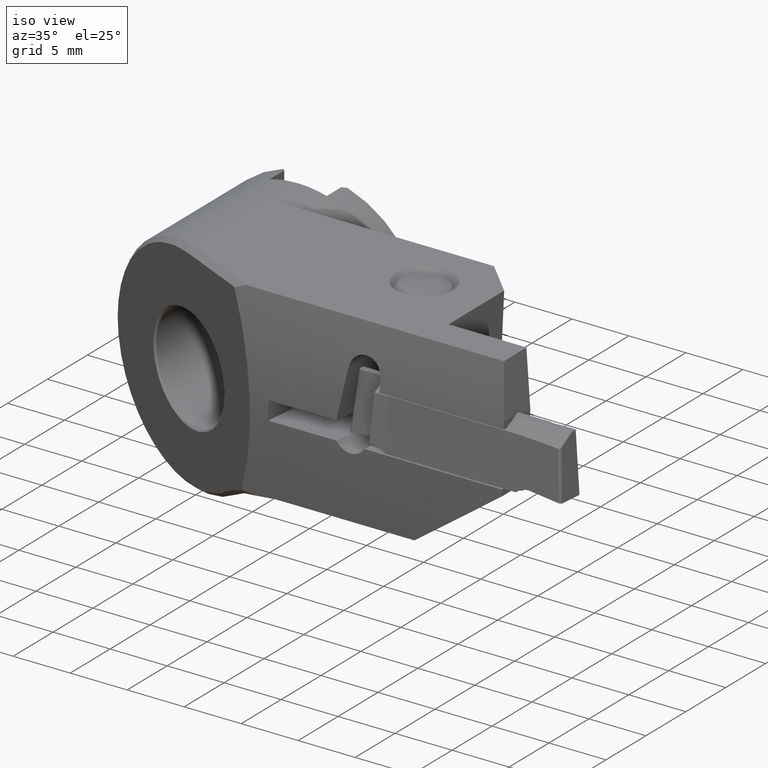
[diagram: clean part render]
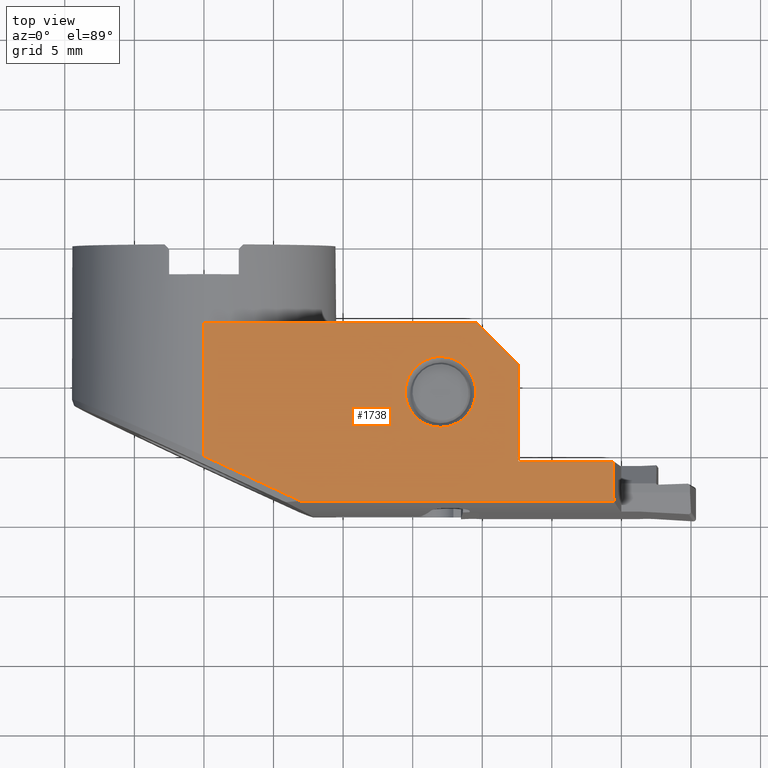
[diagram: tour spotlight — one face highlighted and labeled with its STEP entity id]
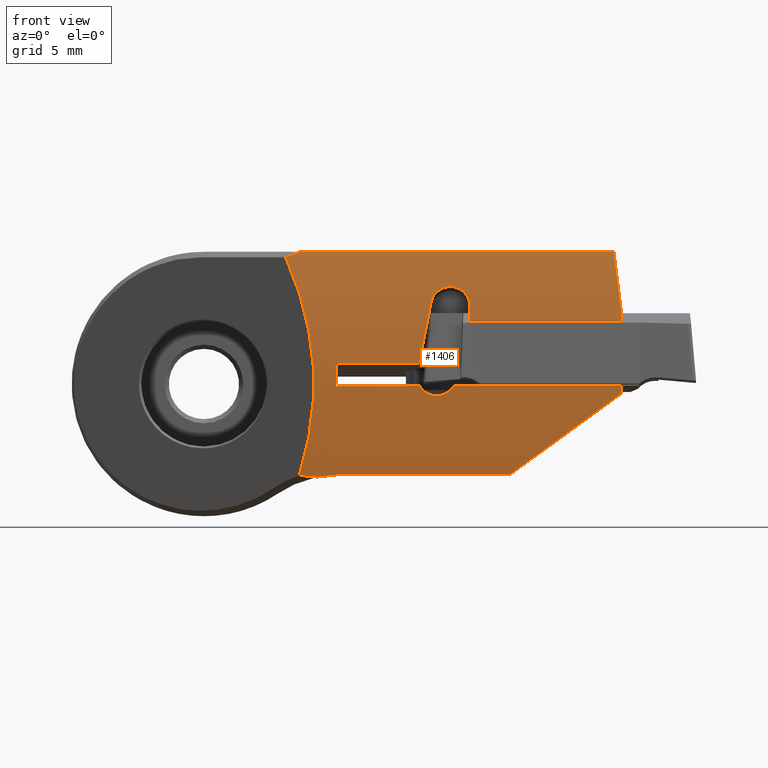
[diagram: tour spotlight — one face highlighted and labeled with its STEP entity id]
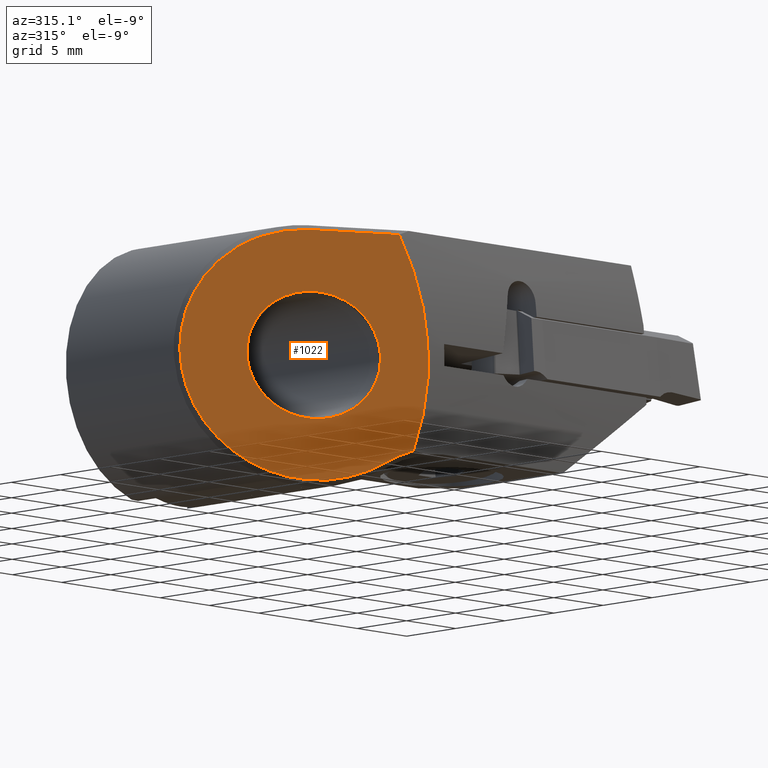
[diagram: tour spotlight — one face highlighted and labeled with its STEP entity id]
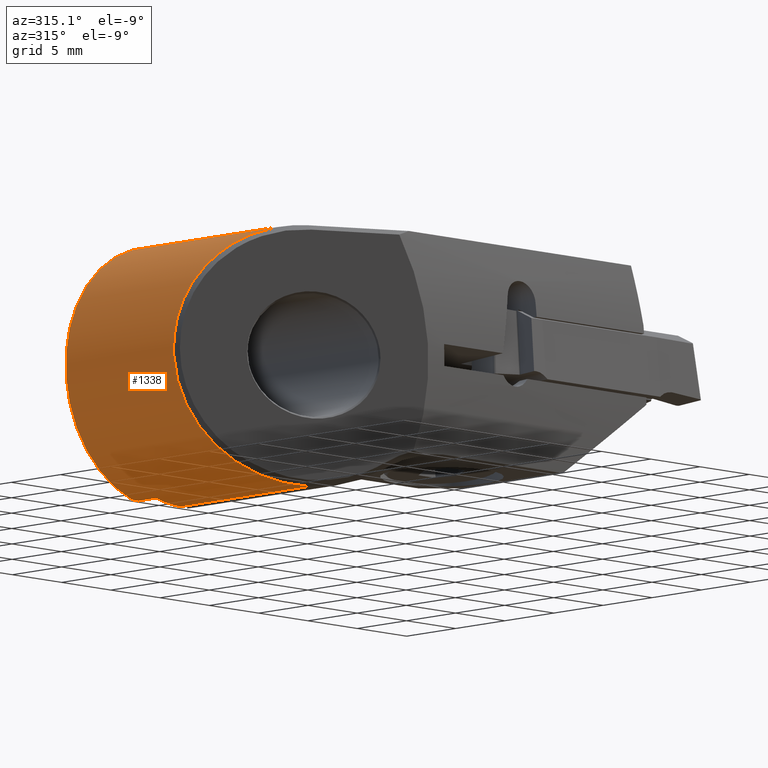
[diagram: tour spotlight — one face highlighted and labeled with its STEP entity id]
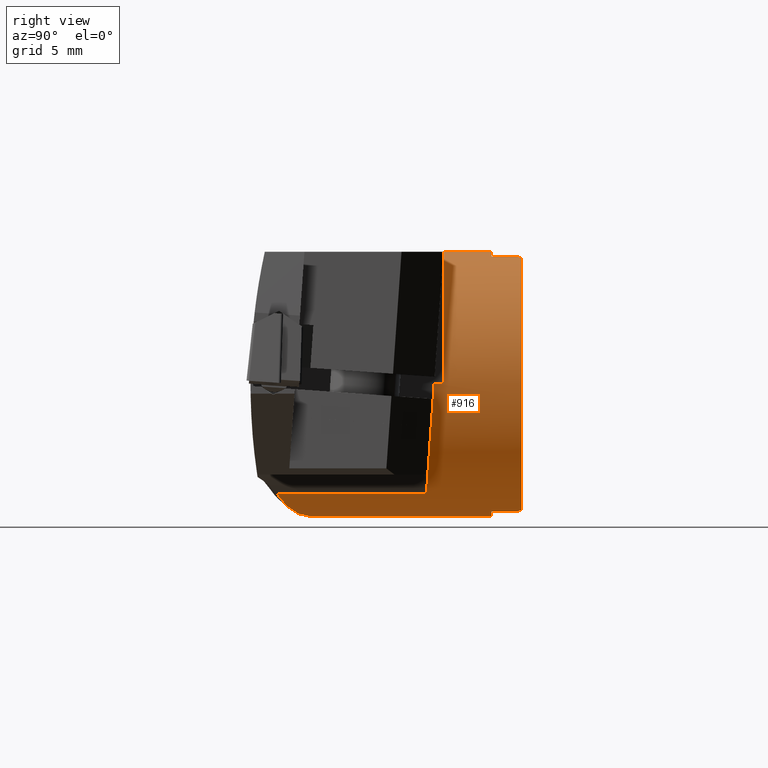
[diagram: tour spotlight — one face highlighted and labeled with its STEP entity id]
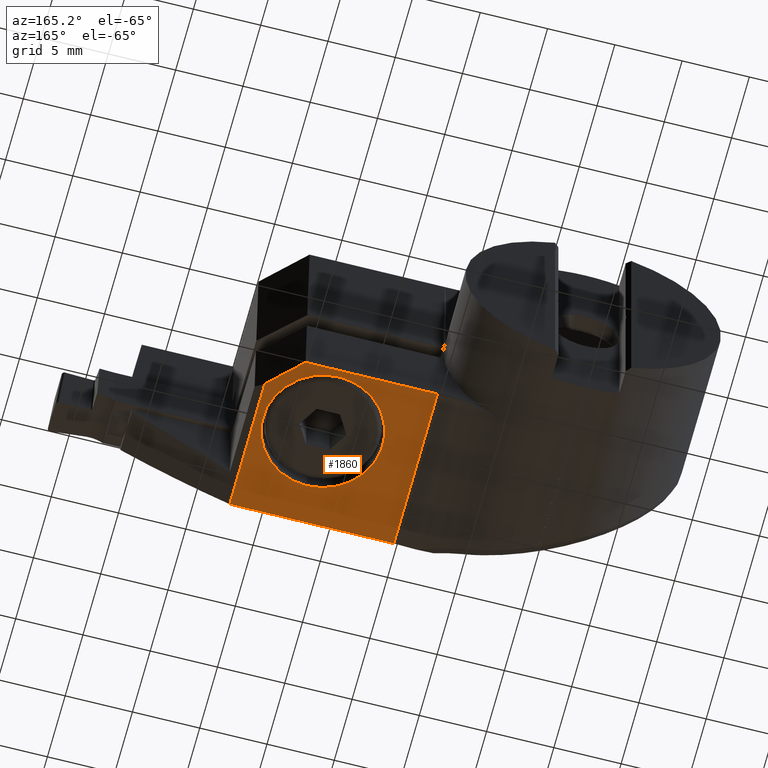
[diagram: tour spotlight — one face highlighted and labeled with its STEP entity id]
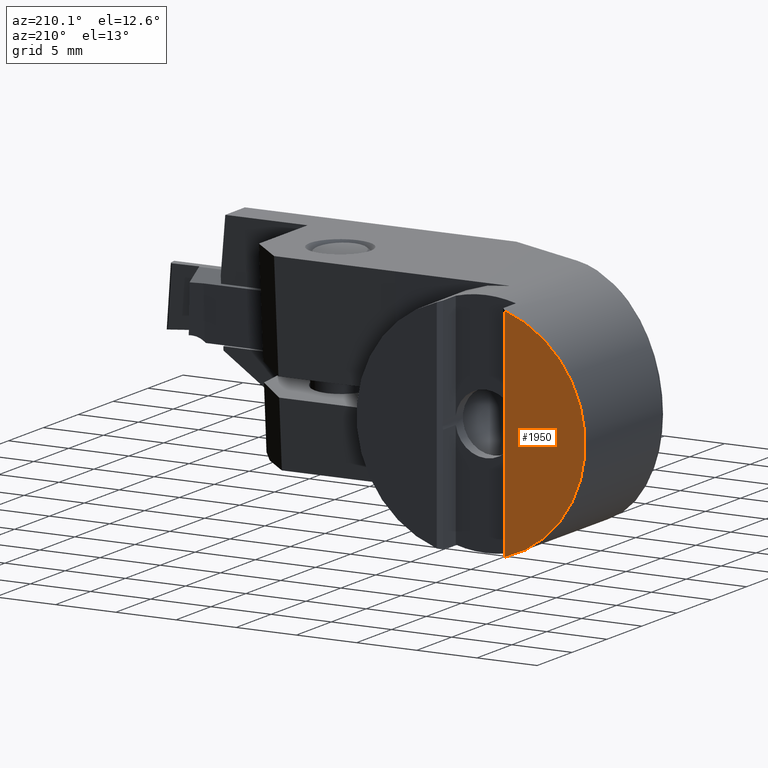
[diagram: tour spotlight — one face highlighted and labeled with its STEP entity id]
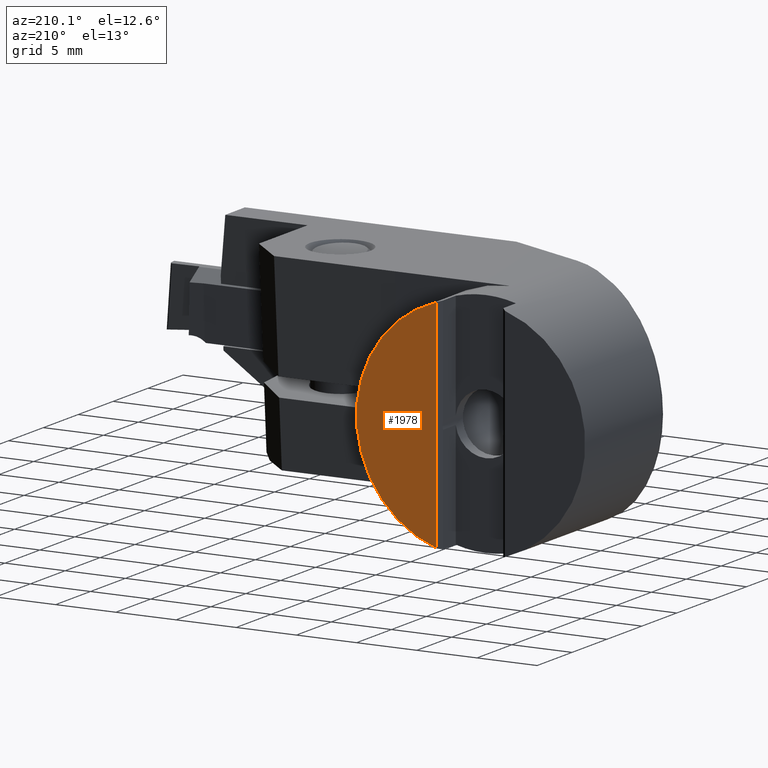
[diagram: tour spotlight — one face highlighted and labeled with its STEP entity id]
A machine part: a face-by-face anatomy tour. The part has 133 B-rep faces; the first image is the clean iso view, then the 8 largest visible faces are spotlighted one at a time (largest first), each with its STEP entity span.

Face 1 — top view, entity #1738. In plain terms, the highlighted planar face has unit normal (0, 0, -1).
Definition (entity closure, byte-faithful):
#770=EDGE_CURVE('Kante8',#1376,#1020,#2240,.F.);
#796=VERTEX_POINT('NONE',#2270);
#902=VERTEX_POINT('NONE',#2385);
#1020=VERTEX_POINT('NONE',#2517);
#1108=VERTEX_POINT('NONE',#2616);
#1124=EDGE_CURVE('NONE',#1340,#1570,#2632,.T.);
#1134=EDGE_CURVE('NONE',#2136,#2030,#2644,.T.);
#1154=EDGE_CURVE('Kante14',#2030,#1020,#2666,.T.);
#1340=VERTEX_POINT('NONE',#2870);
#1376=VERTEX_POINT('NONE',#2908);
#1570=VERTEX_POINT('NONE',#3121);
#1600=EDGE_CURVE('NONE',#1340,#902,#3152,.F.);
#1664=VERTEX_POINT('NONE',#3220);
#1738=ADVANCED_FACE('Fl�che4',(#3300,#3301),#3302,.F.);
#1822=EDGE_CURVE('Kante13',#1664,#796,#3390,.T.);
#1910=EDGE_CURVE('NONE',#1938,#1570,#3492,.T.);
#1924=EDGE_CURVE('Kante50',#1938,#1108,#3507,.T.);
#1938=VERTEX_POINT('NONE',#3521);
#2030=VERTEX_POINT('NONE',#3622);
#2044=EDGE_CURVE('NONE',#1108,#2136,#3637,.T.);
#2102=EDGE_CURVE('Kante6',#902,#1376,#3703,.F.);
#2136=VERTEX_POINT('NONE',#3740);
#2186=EDGE_CURVE('Kante13',#796,#1664,#3797,.T.);
#2240=LINE('',#3850,#3851);
#2270=CARTESIAN_POINT('',(17.0,-8.07234027818883,9.5));
#2385=CARTESIAN_POINT('',(0.0,-5.61117100890403,9.5));
#2517=CARTESIAN_POINT('',(19.6,-5.61117100890395,9.5));
#2616=CARTESIAN_POINT('',(29.4355158916822,-15.5954923137924,9.5));
#2632=LINE('',#4540,#4541);
#2644=LINE('',#4558,#4559);
#2666=LINE('',#4588,#4589);
#2870=CARTESIAN_POINT('',(0.0,-15.2201239327675,9.5));
#2908=CARTESIAN_POINT('',(9.5,-5.61117100890395,9.5));
#3121=CARTESIAN_POINT('',(6.9139038345562,-18.4441302385683,9.5));
#3152=LINE('',#5621,#5622);
#3220=CARTESIAN_POINT('',(17.0,-13.1540056975631,9.5));
#3300=FACE_OUTER_BOUND('',#5911,.T.);
#3301=FACE_BOUND('',#5912,.T.);
#3302=PLANE('',#5913);
#3390=B_SPLINE_CURVE_WITH_KNOTS('',3,(#6113,#6114,#6115,#6116,#6117,#6118,#6119,#6120,#6121,#6122,#6123,#6124,#6125,#6126,#6127,#6128,#6129,#6130),.UNSPECIFIED.,.F.,.F.,(4,2,2,2,2,2,2,2,4),(0.0,0.0624999999999999,0.125,0.1875,0.25,0.3125,0.375,0.4375,0.5),.UNSPECIFIED.);
#3492=LINE('',#6425,#6426);
#3507=LINE('',#6445,#6446);
#3521=CARTESIAN_POINT('',(29.45991452678,-18.4441302385683,9.5));
#3622=CARTESIAN_POINT('',(22.6,-8.61849670314746,9.5));
#3637=LINE('',#6727,#6728);
#3703=LINE('',#6835,#6836);
#3740=CARTESIAN_POINT('',(22.6,-15.5954923137924,9.5));
#3797=B_SPLINE_CURVE_WITH_KNOTS('',3,(#7016,#7017,#7018,#7019,#7020,#7021,#7022,#7023,#7024,#7025,#7026,#7027,#7028,#7029,#7030,#7031,#7032,#7033),.UNSPECIFIED.,.F.,.F.,(4,2,2,2,2,2,2,2,4),(0.5,0.5625,0.625,0.6875,0.75,0.8125,0.875,0.9375,1.0),.UNSPECIFIED.);
#3850=CARTESIAN_POINT('',(3.46410161513775,-5.61117100890395,9.5));
#3851=VECTOR('',#7074,1.0);
#4540=CARTESIAN_POINT('',(1.91506363879351,-16.1131327733911,9.5));
#4541=VECTOR('',#7492,0.999999999999999);
#4558=CARTESIAN_POINT('',(22.6,-17.8166781012989,9.5));
#4559=VECTOR('',#7511,1.0);
#4588=CARTESIAN_POINT('',(19.8271006147311,-5.83882618019044,9.5));
#4589=VECTOR('',#7531,1.0);
#5621=CARTESIAN_POINT('',(0.0,-20.22,9.5));
#5622=VECTOR('',#8055,1.0);
#5911=EDGE_LOOP('',(#8189,#8190,#8191,#8192,#8193,#8194,#8195,#8196,#8197));
#5912=EDGE_LOOP('',(#8198,#8199));
#5913=AXIS2_PLACEMENT_3D('',#8200,#8201,#8202);
#6113=CARTESIAN_POINT('',(17.0,-13.1540056975631,9.5));
#6114=CARTESIAN_POINT('',(16.6674531846679,-13.1537502839888,9.5));
#6115=CARTESIAN_POINT('',(16.3441792285853,-13.0884980800889,9.5));
#6116=CARTESIAN_POINT('',(15.7175868422396,-12.8285848857271,9.5));
#6117=CARTESIAN_POINT('',(15.4423199209496,-12.6447891810534,9.5));
#6118=CARTESIAN_POINT('',(14.9731530509615,-12.1748368724592,9.5));
#6119=CARTESIAN_POINT('',(14.7902092282371,-11.8986244456558,9.5));
#6120=CARTESIAN_POINT('',(14.5304801812511,-11.2706883889742,9.5));
#6121=CARTESIAN_POINT('',(14.4654836775435,-10.9456068019501,9.5));
#6122=CARTESIAN_POINT('',(14.4652295846403,-10.2807391738018,9.5));
#6123=CARTESIAN_POINT('',(14.5307046707184,-9.95575080689296,9.5));
#6124=CARTESIAN_POINT('',(14.7899847387698,-9.32762830998083,9.50000000000001));
#6125=CARTESIAN_POINT('',(14.9733327172319,-9.05168921739731,9.5));
#6126=CARTESIAN_POINT('',(15.4421402546792,-8.58137668059389,9.5));
#6127=CARTESIAN_POINT('',(15.7176798242193,-8.39798613227057,9.5));
#6128=CARTESIAN_POINT('',(16.3440862466056,-8.13762285341733,9.5));
#6129=CARTESIAN_POINT('',(16.668375957863,-8.07246763487209,9.5));
#6130=CARTESIAN_POINT('',(17.0,-8.07234027818883,9.5));
#6425=CARTESIAN_POINT('',(-9.39759768309578,-18.4441302385683,9.5));
#6426=VECTOR('',#8370,1.0);
#6445=CARTESIAN_POINT('',(29.4737662715979,-20.0613766728235,9.5));
#6446=VECTOR('',#8383,1.0);
#6727=CARTESIAN_POINT('',(11.3,-15.5954923137924,9.5));
#6728=VECTOR('',#8508,1.0);
#6835=CARTESIAN_POINT('',(0.0,-5.61117100890403,9.5));
#6836=VECTOR('',#8600,1.0);
#7016=CARTESIAN_POINT('',(17.0,-8.07234027818883,9.5));
#7017=CARTESIAN_POINT('',(17.331624042137,-8.07221292150558,9.5));
#7018=CARTESIAN_POINT('',(17.6558207714134,-8.13784789566211,9.5));
#7019=CARTESIAN_POINT('',(18.2824131577616,-8.39776109002579,9.5));
#7020=CARTESIAN_POINT('',(18.5576800790516,-8.58155679469942,9.5));
#7021=CARTESIAN_POINT('',(19.0268469490373,-9.05150910329179,9.5));
#7022=CARTESIAN_POINT('',(19.2097907717635,-9.32772153009955,9.5));
#7023=CARTESIAN_POINT('',(19.4695198187483,-9.95565758677425,9.5));
#7024=CARTESIAN_POINT('',(19.5345163224559,-10.2807391738051,9.5));
#7025=CARTESIAN_POINT('',(19.5347704153604,-10.9456068019468,9.5));
#7026=CARTESIAN_POINT('',(19.4692953292798,-11.2705951688613,9.5));
#7027=CARTESIAN_POINT('',(19.210015261232,-11.8987176657687,9.5));
#7028=CARTESIAN_POINT('',(19.026667282767,-12.174656758355,9.5));
#7029=CARTESIAN_POINT('',(18.5578597453219,-12.6449692951576,9.5));
#7030=CARTESIAN_POINT('',(18.2832411402165,-12.8279770483636,9.5));
#7031=CARTESIAN_POINT('',(17.6549927889586,-13.0891059174523,9.5));
#7032=CARTESIAN_POINT('',(17.3319538007627,-13.1542606556707,9.5));
#7033=CARTESIAN_POINT('',(17.0,-13.1540056975631,9.5));
#7074=DIRECTION('',(-1.0,0.0,0.0));
#7492=DIRECTION('',(0.906307787036649,-0.422618261740701,0.0));
#7511=DIRECTION('',(0.0,1.0,0.0));
#7531=DIRECTION('',(-0.706243967529311,0.707968543318457,-0.0));
#8055=DIRECTION('',(0.0,-1.0,0.0));
#8189=ORIENTED_EDGE('',*,*,#1600,.F.);
#8190=ORIENTED_EDGE('',*,*,#1124,.T.);
#8191=ORIENTED_EDGE('',*,*,#1910,.F.);
#8192=ORIENTED_EDGE('',*,*,#1924,.T.);
#8193=ORIENTED_EDGE('',*,*,#2044,.T.);
#8194=ORIENTED_EDGE('',*,*,#1134,.T.);
#8195=ORIENTED_EDGE('',*,*,#1154,.T.);
#8196=ORIENTED_EDGE('',*,*,#770,.F.);
#8197=ORIENTED_EDGE('',*,*,#2102,.F.);
#8198=ORIENTED_EDGE('',*,*,#1822,.T.);
#8199=ORIENTED_EDGE('',*,*,#2186,.T.);
#8200=CARTESIAN_POINT('',(0.0,-20.22,9.5));
#8201=DIRECTION('',(0.0,0.0,-1.0));
#8202=DIRECTION('',(1.0,0.0,0.0));
#8370=DIRECTION('',(-1.0,0.0,0.0));
#8383=DIRECTION('',(-0.00856470385322847,0.999963322251325,-0.0));
#8508=DIRECTION('',(-1.0,0.0,0.0));
#8600=DIRECTION('',(-1.0,0.0,-0.0));

Face 2 — front view, entity #1406. In plain terms, the highlighted cylindrical surface (partial cylindrical patch) has radius 44.5 mm, axis along (-1, -0, -0).
Definition (entity closure, byte-faithful):
#780=VERTEX_POINT('NONE',#2251);
#794=VERTEX_POINT('NONE',#2268);
#808=EDGE_CURVE('NONE',#1986,#2098,#2282,.T.);
#812=VERTEX_POINT('NONE',#2286);
#824=VERTEX_POINT('',#2299);
#952=EDGE_CURVE('NONE',#1192,#1368,#2441,.F.);
#1000=VERTEX_POINT('NONE',#2495);
#1024=VERTEX_POINT('NONE',#2523);
#1106=EDGE_CURVE('NONE',#2098,#2122,#2614,.T.);
#1156=EDGE_CURVE('NONE',#1300,#1000,#2668,.T.);
#1164=EDGE_CURVE('Kante80',#1000,#780,#2676,.T.);
#1168=VERTEX_POINT('NONE',#2681);
#1192=VERTEX_POINT('NONE',#2710);
#1210=EDGE_CURVE('NONE',#812,#1346,#2728,.T.);
#1258=VERTEX_POINT('NONE',#2780);
#1284=EDGE_CURVE('NONE',#2154,#1454,#2807,.T.);
#1300=VERTEX_POINT('NONE',#2823);
#1346=VERTEX_POINT('NONE',#2876);
#1368=VERTEX_POINT('NONE',#2900);
#1406=ADVANCED_FACE('Fl�che8',(#2941),#2942,.T.);
#1418=EDGE_CURVE('Kante49',#824,#1986,#2955,.F.);
#1420=EDGE_CURVE('NONE',#1346,#1938,#2957,.T.);
#1454=VERTEX_POINT('NONE',#2996);
#1502=EDGE_CURVE('Kante57',#1916,#1454,#3051,.T.);
#1554=EDGE_CURVE('Kante49',#794,#824,#3104,.F.);
#1570=VERTEX_POINT('NONE',#3121);
#1616=EDGE_CURVE('NONE',#1024,#1300,#3169,.T.);
#1748=EDGE_CURVE('Kante52',#1168,#794,#3313,.T.);
#1810=EDGE_CURVE('Kante51',#1570,#1918,#3378,.F.);
#1832=EDGE_CURVE('NONE',#812,#1168,#3404,.T.);
#1872=EDGE_CURVE('NONE',#1368,#1916,#3448,.F.);
#1902=EDGE_CURVE('NONE',#1258,#1192,#3483,.T.);
#1910=EDGE_CURVE('NONE',#1938,#1570,#3492,.T.);
#1916=VERTEX_POINT('NONE',#3499);
#1918=VERTEX_POINT('NONE',#3501);
#1938=VERTEX_POINT('NONE',#3521);
#1986=VERTEX_POINT('NONE',#3573);
#2012=EDGE_CURVE('NONE',#2122,#1258,#3603,.T.);
#2026=EDGE_CURVE('Kante39',#2154,#780,#3618,.T.);
#2098=VERTEX_POINT('NONE',#3699);
#2122=VERTEX_POINT('NONE',#3725);
#2154=VERTEX_POINT('NONE',#3761);
#2200=EDGE_CURVE('NONE',#1918,#1024,#3812,.T.);
#2251=CARTESIAN_POINT('',(22.0,-18.9927214061103,-6.5));
#2268=CARTESIAN_POINT('',(19.1009,-19.1140728078476,5.61701307951539));
#2282=ELLIPSE('',#3925,45.332892925507,44.5);
#2286=CARTESIAN_POINT('',(30.0,-19.239533158625,4.52310003398128));
#2299=CARTESIAN_POINT('',(17.7009,-18.9149524660292,7.00650788613257));
#2441=B_SPLINE_CURVE_WITH_KNOTS('',3,(#4238,#4239,#4240,#4241,#4242,#4243,#4244,#4245,#4246,#4247,#4248,#4249,#4250,#4251,#4252,#4253,#4254,#4255,#4256,#4257),.UNSPECIFIED.,.F.,.F.,(4,2,2,2,2,2,2,2,2,4),(2.63919345754755,3.16787423935682,3.69526520631181,4.2226561732668,4.75004714022178,5.27743810717676,5.80611888898604,6.33479967079532,6.86273927272208,7.39067887464885),.UNSPECIFIED.);
#2495=CARTESIAN_POINT('',(9.79795897113271,-18.9927214061103,-6.5));
#2523=CARTESIAN_POINT('',(6.84717519888688,-18.9829752229444,-6.56566919852634));
#2614=LINE('',#4512,#4513);
#2668=B_SPLINE_CURVE_WITH_KNOTS('',3,(#4592,#4593,#4594,#4595,#4596,#4597,#4598,#4599),.UNSPECIFIED.,.F.,.F.,(4,2,2,4),(10.0091798743695,11.6425256412956,13.2758714082217,14.9092171751478),.UNSPECIFIED.);
#2676=LINE('',#4612,#4613);
#2681=CARTESIAN_POINT('',(19.1009,-19.239533158625,4.52310003398128));
#2710=CARTESIAN_POINT('',(15.5087850094,-19.4697396159966,-0.152230445385687));
#2728=CIRCLE('',#4694,44.5);
#2780=CARTESIAN_POINT('',(9.5,-19.4697396159966,-0.152230445385657));
#2807=CIRCLE('',#4850,44.5);
#2823=CARTESIAN_POINT('',(8.11528167965003,-18.9659251968347,-6.67896444626872));
#2876=CARTESIAN_POINT('',(30.0,-19.1719779650046,5.14151183809294));
#2900=CARTESIAN_POINT('',(16.71539183,-19.4619868238761,-0.844457496877239));
#2941=FACE_OUTER_BOUND('',#5128,.T.);
#2942=CYLINDRICAL_SURFACE('',#5129,44.5);
#2955=B_SPLINE_CURVE_WITH_KNOTS('',3,(#5147,#5148,#5149,#5150,#5151,#5152,#5153,#5154,#5155,#5156,#5157,#5158,#5159,#5160,#5161,#5162,#5163,#5164,#5165,#5166,#5167,#5168,#5169,#5170,#5171,#5172,#5173,#5174,#5175,#5176,#5177),.UNSPECIFIED.,.F.,.F.,(4,2,2,2,2,2,2,3,2,2,2,2,2,2,4),(-3.69527850511229,-3.16796067022955,-2.64003356226671,-2.11210645430386,-1.58344463983648,-1.05478282536911,-0.527391412684553,0.0,0.527391412684553,1.05478282536911,1.58344463983648,2.11210645430386,2.64003356226671,3.16796067022955,3.69527850511229),.UNSPECIFIED.);
#2957=ELLIPSE('',#5180,44.8341872329187,44.5);
#2996=CARTESIAN_POINT('',(30.0,-19.4697396159966,-0.152230445385657));
#3051=LINE('',#5308,#5309);
#3104=B_SPLINE_CURVE_WITH_KNOTS('',3,(#5499,#5500,#5501,#5502,#5503,#5504,#5505,#5506,#5507,#5508,#5509,#5510,#5511,#5512,#5513,#5514,#5515,#5516,#5517,#5518,#5519,#5520,#5521,#5522,#5523,#5524,#5525,#5526,#5527,#5528,#5529),.UNSPECIFIED.,.F.,.F.,(4,2,2,2,2,2,2,3,2,2,2,2,2,2,4),(-3.69527850511229,-3.16796067022955,-2.64003356226671,-2.11210645430386,-1.58344463983648,-1.05478282536911,-0.527391412684553,0.0,0.527391412684553,1.05478282536911,1.58344463983648,2.11210645430386,2.64003356226671,3.16796067022955,3.69527850511229),.UNSPECIFIED.);
#3121=CARTESIAN_POINT('',(6.9139038345562,-18.4441302385683,9.5));
#3169=B_SPLINE_CURVE_WITH_KNOTS('',3,(#5687,#5688,#5689,#5690,#5691,#5692),.UNSPECIFIED.,.F.,.F.,(4,2,4),(-1.28576253934172,-0.634236740640874,-0.0),.UNSPECIFIED.);
#3313=CIRCLE('',#5931,44.5);
#3378=ELLIPSE('',#6094,174.272721030182,44.5);
#3404=LINE('',#6180,#6181);
#3448=B_SPLINE_CURVE_WITH_KNOTS('',3,(#6319,#6320,#6321,#6322,#6323,#6324,#6325,#6326,#6327,#6328,#6329,#6330,#6331,#6332,#6333,#6334,#6335,#6336,#6337,#6338),.UNSPECIFIED.,.F.,.F.,(4,2,2,2,2,2,2,2,2,4),(1.05463347188474,1.58257307381151,2.11051267573827,2.63919345754755,3.16787423935682,3.69526520631181,4.2226561732668,4.75004714022178,5.27743810717676,5.80611888898604),.UNSPECIFIED.);
#3483=LINE('',#6411,#6412);
#3492=LINE('',#6425,#6426);
#3499=CARTESIAN_POINT('',(17.9219986506,-19.4697396159966,-0.152230445385683));
#3501=CARTESIAN_POINT('',(5.87121268776036,-18.527876429934,9.10831493277442));
#3521=CARTESIAN_POINT('',(29.45991452678,-18.4441302385683,9.5));
#3573=CARTESIAN_POINT('',(16.3266219431733,-19.0794956242425,5.88238011139461));
#3603=CIRCLE('',#6658,44.5);
#3618=ELLIPSE('',#6690,75.7079219433321,44.5);
#3699=CARTESIAN_POINT('',(15.4621869348671,-19.4463687502489,1.45004234141012));
#3725=CARTESIAN_POINT('',(9.5,-19.4463687502489,1.45004234141012));
#3761=CARTESIAN_POINT('',(30.0,-19.4646864696509,-0.687659775957177));
#3812=ELLIPSE('',#7054,105.295970450286,44.5);
#3925=AXIS2_PLACEMENT_3D('',#7116,#7117,#7118);
#4238=CARTESIAN_POINT('',(18.0086898399103,-19.4699944956124,0.0221334693949452));
#4239=CARTESIAN_POINT('',(17.9371722626638,-19.4700805190093,-0.150819108947051));
#4240=CARTESIAN_POINT('',(17.8293228268919,-19.469103769117,-0.308748100301531));
#4241=CARTESIAN_POINT('',(17.5806744190182,-19.4666763475275,-0.557924572910028));
#4242=CARTESIAN_POINT('',(17.4233904785588,-19.4650749188956,-0.665913659164027));
#4243=CARTESIAN_POINT('',(17.0786497008994,-19.4627000024274,-0.80918449077726));
#4244=CARTESIAN_POINT('',(16.891188818985,-19.4619868238761,-0.844457496877237));
#4245=CARTESIAN_POINT('',(16.539594841015,-19.4619868238761,-0.844457496877237));
#4246=CARTESIAN_POINT('',(16.3521339591006,-19.4627000024274,-0.809184490777259));
#4247=CARTESIAN_POINT('',(16.0073931814412,-19.4650749188956,-0.665913659164026));
#4248=CARTESIAN_POINT('',(15.8501092409818,-19.4666763475275,-0.557924572910026));
#4249=CARTESIAN_POINT('',(15.6014608331081,-19.469103769117,-0.30874810030153));
#4250=CARTESIAN_POINT('',(15.4936113973362,-19.4700805190093,-0.150819108947052));
#4251=CARTESIAN_POINT('',(15.3505762428432,-19.4699084722154,0.195086047736942));
#4252=CARTESIAN_POINT('',(15.31539183,-19.4687001931713,0.383062720915745));
#4253=CARTESIAN_POINT('',(15.31539183,-19.4642736603162,0.735241698076891));
#4254=CARTESIAN_POINT('',(15.3504880578076,-19.4607630315838,0.922943179729514));
#4255=CARTESIAN_POINT('',(15.4933750413226,-19.4522602746566,1.26820349431916));
#4256=CARTESIAN_POINT('',(15.6011691591624,-19.4473278313071,1.4257624031044));
#4257=CARTESIAN_POINT('',(15.7255856774591,-19.4429924251314,1.55014346245937));
#4512=CARTESIAN_POINT('',(-9.39759768309578,-19.4463687502489,1.45004234141012));
#4513=VECTOR('',#7482,1.0);
#4592=CARTESIAN_POINT('',(6.51036733579734,-18.8825608135066,-7.20673315726945));
#4593=CARTESIAN_POINT('',(7.03274323159025,-18.9212053933627,-6.97126129337561));
#4594=CARTESIAN_POINT('',(7.58189785257082,-18.94875752205,-6.7921344304082));
#4595=CARTESIAN_POINT('',(8.69227567750493,-18.9845070806536,-6.55647540577291));
#4596=CARTESIAN_POINT('',(9.25351038215735,-18.9927214061103,-6.5));
#4597=CARTESIAN_POINT('',(10.3424075601081,-18.9927214061103,-6.5));
#4598=CARTESIAN_POINT('',(10.9036422647605,-18.9845070806536,-6.55647540577291));
#4599=CARTESIAN_POINT('',(11.4588311772275,-18.9666323013518,-6.67430491809056));
#4612=CARTESIAN_POINT('',(-9.39759768309578,-18.9927214061103,-6.5));
#4613=VECTOR('',#7533,1.0);
#4694=AXIS2_PLACEMENT_3D('',#7596,#7597,#7598);
#4850=AXIS2_PLACEMENT_3D('',#7673,#7674,#7675);
#5128=EDGE_LOOP('',(#7835,#7836,#7837,#7838,#7839,#7840,#7841,#7842,#7843,#7844,#7845,#7846,#7847,#7848,#7849,#7850,#7851,#7852,#7853,#7854,#7855));
#5129=AXIS2_PLACEMENT_3D('',#7856,#7857,#7858);
#5147=CARTESIAN_POINT('',(17.1651997739772,-19.2587864324125,4.33051917720611));
#5148=CARTESIAN_POINT('',(16.9927578807693,-19.2518336373619,4.40162632233678));
#5149=CARTESIAN_POINT('',(16.8353604358486,-19.2411608650497,4.50885445538865));
#5150=CARTESIAN_POINT('',(16.586675731845,-19.2152644708247,4.7562653916079));
#5151=CARTESIAN_POINT('',(16.4788827461887,-19.1982989967348,4.91298132241943));
#5152=CARTESIAN_POINT('',(16.3359965366449,-19.1588389922415,5.25607516470492));
#5153=CARTESIAN_POINT('',(16.3009,-19.1362853432069,5.44244489456297));
#5154=CARTESIAN_POINT('',(16.3009,-19.091829359709,5.79182420781934));
#5155=CARTESIAN_POINT('',(16.3360839533689,-19.0669578523529,5.97814505715386));
#5156=CARTESIAN_POINT('',(16.4791170428631,-19.0191593505463,6.32071757533171));
#5157=CARTESIAN_POINT('',(16.5869648651679,-18.9962911920873,6.4769779994221));
#5158=CARTESIAN_POINT('',(16.8356120580268,-18.9593321460838,6.72340261944818));
#5159=CARTESIAN_POINT('',(16.9928978487489,-18.9427705154402,6.83012341932251));
#5160=CARTESIAN_POINT('',(17.3376412451902,-18.92055021568,6.97167615944886));
#5161=CARTESIAN_POINT('',(17.5251028624385,-18.9149524660292,7.00650788613257));
#5162=CARTESIAN_POINT('',(17.7009,-18.9149524660292,7.00650788613257));
#5163=CARTESIAN_POINT('',(17.8766971375615,-18.9149524660292,7.00650788613257));
#5164=CARTESIAN_POINT('',(18.0641587548098,-18.92055021568,6.97167615944886));
#5165=CARTESIAN_POINT('',(18.4089021512511,-18.9427705154402,6.83012341932251));
#5166=CARTESIAN_POINT('',(18.5661879419732,-18.9593321460838,6.72340261944818));
#5167=CARTESIAN_POINT('',(18.8148351348321,-18.9962911920873,6.4769779994221));
#5168=CARTESIAN_POINT('',(18.9226829571369,-19.0191593505463,6.32071757533171));
#5169=CARTESIAN_POINT('',(19.0657160466311,-19.0669578523529,5.97814505715386));
#5170=CARTESIAN_POINT('',(19.1009,-19.091829359709,5.79182420781934));
#5171=CARTESIAN_POINT('',(19.1009,-19.1362853432069,5.44244489456297));
#5172=CARTESIAN_POINT('',(19.0658034633551,-19.1588389922415,5.25607516470492));
#5173=CARTESIAN_POINT('',(18.9229172538113,-19.1982989967348,4.91298132241943));
#5174=CARTESIAN_POINT('',(18.815124268155,-19.2152644708247,4.7562653916079));
#5175=CARTESIAN_POINT('',(18.5664395641514,-19.2411608650497,4.50885445538865));
#5176=CARTESIAN_POINT('',(18.4090421192307,-19.2518336373619,4.40162632233678));
#5177=CARTESIAN_POINT('',(18.2366002260228,-19.2587864324125,4.33051917720611));
#5180=AXIS2_PLACEMENT_3D('',#7869,#7870,#7871);
#5308=CARTESIAN_POINT('',(-9.39759768309578,-19.4697396159966,-0.152230445385657));
#5309=VECTOR('',#7992,1.0);
#5499=CARTESIAN_POINT('',(17.1651997739772,-19.2587864324125,4.33051917720611));
#5500=CARTESIAN_POINT('',(16.9927578807693,-19.2518336373619,4.40162632233678));
#5501=CARTESIAN_POINT('',(16.8353604358486,-19.2411608650497,4.50885445538865));
#5502=CARTESIAN_POINT('',(16.586675731845,-19.2152644708247,4.7562653916079));
#5503=CARTESIAN_POINT('',(16.4788827461887,-19.1982989967348,4.91298132241943));
#5504=CARTESIAN_POINT('',(16.3359965366449,-19.1588389922415,5.25607516470492));
#5505=CARTESIAN_POINT('',(16.3009,-19.1362853432069,5.44244489456297));
#5506=CARTESIAN_POINT('',(16.3009,-19.091829359709,5.79182420781934));
#5507=CARTESIAN_POINT('',(16.3360839533689,-19.0669578523529,5.97814505715386));
#5508=CARTESIAN_POINT('',(16.4791170428631,-19.0191593505463,6.32071757533171));
#5509=CARTESIAN_POINT('',(16.5869648651679,-18.9962911920873,6.4769779994221));
#5510=CARTESIAN_POINT('',(16.8356120580268,-18.9593321460838,6.72340261944818));
#5511=CARTESIAN_POINT('',(16.9928978487489,-18.9427705154402,6.83012341932251));
#5512=CARTESIAN_POINT('',(17.3376412451902,-18.92055021568,6.97167615944886));
#5513=CARTESIAN_POINT('',(17.5251028624385,-18.9149524660292,7.00650788613257));
#5514=CARTESIAN_POINT('',(17.7009,-18.9149524660292,7.00650788613257));
#5515=CARTESIAN_POINT('',(17.8766971375615,-18.9149524660292,7.00650788613257));
#5516=CARTESIAN_POINT('',(18.0641587548098,-18.92055021568,6.97167615944886));
#5517=CARTESIAN_POINT('',(18.4089021512511,-18.9427705154402,6.83012341932251));
#5518=CARTESIAN_POINT('',(18.5661879419732,-18.9593321460838,6.72340261944818));
#5519=CARTESIAN_POINT('',(18.8148351348321,-18.9962911920873,6.4769779994221));
#5520=CARTESIAN_POINT('',(18.9226829571369,-19.0191593505463,6.32071757533171));
#5521=CARTESIAN_POINT('',(19.0657160466311,-19.0669578523529,5.97814505715386));
#5522=CARTESIAN_POINT('',(19.1009,-19.091829359709,5.79182420781934));
#5523=CARTESIAN_POINT('',(19.1009,-19.1362853432069,5.44244489456297));
#5524=CARTESIAN_POINT('',(19.0658034633551,-19.1588389922415,5.25607516470492));
#5525=CARTESIAN_POINT('',(18.9229172538113,-19.1982989967348,4.91298132241943));
#5526=CARTESIAN_POINT('',(18.815124268155,-19.2152644708247,4.7562653916079));
#5527=CARTESIAN_POINT('',(18.5664395641514,-19.2411608650497,4.50885445538865));
#5528=CARTESIAN_POINT('',(18.4090421192307,-19.2518336373619,4.40162632233678));
#5529=CARTESIAN_POINT('',(18.2366002260228,-19.2587864324125,4.33051917720611));
#5687=CARTESIAN_POINT('',(6.66711031797579,-18.9832603249719,-6.56375773214195));
#5688=CARTESIAN_POINT('',(6.95710000139081,-18.9832267244504,-6.56398304035101));
#5689=CARTESIAN_POINT('',(7.24718535132881,-18.9811401111636,-6.57801780252592));
#5690=CARTESIAN_POINT('',(7.81686769078072,-18.9730003824273,-6.63224615085967));
#5691=CARTESIAN_POINT('',(8.01225580268053,-18.9684786257757,-6.66220961119194));
#5692=CARTESIAN_POINT('',(8.22091066563456,-18.9633576344957,-6.69585573645055));
#5931=AXIS2_PLACEMENT_3D('',#8214,#8215,#8216);
#6094=AXIS2_PLACEMENT_3D('',#8249,#8250,#8251);
#6180=CARTESIAN_POINT('',(-9.39759768309578,-19.239533158625,4.52310003398128));
#6181=VECTOR('',#8276,1.0);
#6319=CARTESIAN_POINT('',(17.7051979825409,-19.4429924251314,1.55014346245937));
#6320=CARTESIAN_POINT('',(17.8296145008376,-19.4473278313071,1.42576240310441));
#6321=CARTESIAN_POINT('',(17.9374086186774,-19.4522602746566,1.26820349431916));
#6322=CARTESIAN_POINT('',(18.0802956021924,-19.4607630315838,0.922943179729513));
#6323=CARTESIAN_POINT('',(18.11539183,-19.4642736603162,0.735241698076891));
#6324=CARTESIAN_POINT('',(18.11539183,-19.4687001931713,0.383062720915745));
#6325=CARTESIAN_POINT('',(18.0802074171568,-19.4699084722154,0.195086047736942));
#6326=CARTESIAN_POINT('',(17.9371722626638,-19.4700805190093,-0.150819108947051));
#6327=CARTESIAN_POINT('',(17.8293228268919,-19.469103769117,-0.308748100301531));
#6328=CARTESIAN_POINT('',(17.5806744190182,-19.4666763475275,-0.557924572910028));
#6329=CARTESIAN_POINT('',(17.4233904785588,-19.4650749188956,-0.665913659164027));
#6330=CARTESIAN_POINT('',(17.0786497008994,-19.4627000024274,-0.80918449077726));
#6331=CARTESIAN_POINT('',(16.891188818985,-19.4619868238761,-0.844457496877237));
#6332=CARTESIAN_POINT('',(16.539594841015,-19.4619868238761,-0.844457496877237));
#6333=CARTESIAN_POINT('',(16.3521339591006,-19.4627000024274,-0.809184490777259));
#6334=CARTESIAN_POINT('',(16.0073931814412,-19.4650749188956,-0.665913659164026));
#6335=CARTESIAN_POINT('',(15.8501092409818,-19.4666763475275,-0.557924572910026));
#6336=CARTESIAN_POINT('',(15.6014608331081,-19.469103769117,-0.30874810030153));
#6337=CARTESIAN_POINT('',(15.4936113973362,-19.4700805190093,-0.150819108947052));
#6338=CARTESIAN_POINT('',(15.4220938200897,-19.4699944956124,0.0221334693949441));
#6411=CARTESIAN_POINT('',(-9.39759768309578,-19.4697396159966,-0.152230445385657));
#6412=VECTOR('',#8355,1.0);
#6425=CARTESIAN_POINT('',(-9.39759768309578,-18.4441302385683,9.5));
#6426=VECTOR('',#8370,1.0);
#6658=AXIS2_PLACEMENT_3D('',#8476,#8477,#8478);
#6690=AXIS2_PLACEMENT_3D('',#8494,#8495,#8496);
#7054=AXIS2_PLACEMENT_3D('',#8729,#8730,#8731);
#7116=CARTESIAN_POINT('',(15.784081608861,25.03,0.0));
#7117=DIRECTION('',(0.981627183447665,-0.0133101626761251,-0.190344194253828));
#7118=DIRECTION('',(-0.190808995376539,-0.0684748508486798,-0.979235988965197));
#7482=DIRECTION('',(-1.0,0.0,0.0));
#7533=DIRECTION('',(1.0,0.0,0.0));
#7596=CARTESIAN_POINT('',(30.0,25.03,0.0));
#7597=DIRECTION('',(-1.0,0.0,0.0));
#7598=DIRECTION('',(0.0,0.0,-1.0));
#7673=CARTESIAN_POINT('',(30.0,25.03,0.0));
#7674=DIRECTION('',(-1.0,0.0,0.0));
#7675=DIRECTION('',(0.0,0.0,-1.0));
#7835=ORIENTED_EDGE('',*,*,#2200,.T.);
#7836=ORIENTED_EDGE('',*,*,#1616,.T.);
#7837=ORIENTED_EDGE('',*,*,#1156,.T.);
#7838=ORIENTED_EDGE('',*,*,#1164,.T.);
#7839=ORIENTED_EDGE('',*,*,#2026,.F.);
#7840=ORIENTED_EDGE('',*,*,#1284,.T.);
#7841=ORIENTED_EDGE('',*,*,#1502,.F.);
#7842=ORIENTED_EDGE('',*,*,#1872,.F.);
#7843=ORIENTED_EDGE('',*,*,#952,.F.);
#7844=ORIENTED_EDGE('',*,*,#1902,.F.);
#7845=ORIENTED_EDGE('',*,*,#2012,.F.);
#7846=ORIENTED_EDGE('',*,*,#1106,.F.);
#7847=ORIENTED_EDGE('',*,*,#808,.F.);
#7848=ORIENTED_EDGE('',*,*,#1418,.F.);
#7849=ORIENTED_EDGE('',*,*,#1554,.F.);
#7850=ORIENTED_EDGE('',*,*,#1748,.F.);
#7851=ORIENTED_EDGE('',*,*,#1832,.F.);
#7852=ORIENTED_EDGE('',*,*,#1210,.T.);
#7853=ORIENTED_EDGE('',*,*,#1420,.T.);
#7854=ORIENTED_EDGE('',*,*,#1910,.T.);
#7855=ORIENTED_EDGE('',*,*,#1810,.T.);
#7856=CARTESIAN_POINT('',(-9.39759768309578,25.03,0.0));
#7857=DIRECTION('',(-1.0,-0.0,-0.0));
#7858=DIRECTION('',(0.0,0.0,-1.0));
#7869=CARTESIAN_POINT('',(30.2511697256991,25.03,0.0));
#7870=DIRECTION('',(-0.992546151641323,-0.00850117565345359,-0.121572475809737));
#7871=DIRECTION('',(0.12186934340514,-0.0692365195667938,-0.99012835910112));
#7992=DIRECTION('',(1.0,0.0,0.0));
#8214=CARTESIAN_POINT('',(19.1009,25.03,0.0));
#8215=DIRECTION('',(-1.0,-0.0,-0.0));
#8216=DIRECTION('',(0.0,0.0,-1.0));
#8249=CARTESIAN_POINT('',(-115.962199860305,25.03,0.0));
#8250=DIRECTION('',(-0.255346905338634,-0.547593205629396,0.796830997817294));
#8251=DIRECTION('',(-0.966849501181018,0.144620471201701,-0.210444675331582));
#8276=DIRECTION('',(-1.0,0.0,0.0));
#8355=DIRECTION('',(1.0,0.0,0.0));
#8370=DIRECTION('',(-1.0,0.0,0.0));
#8476=CARTESIAN_POINT('',(9.5,25.03,0.0));
#8477=DIRECTION('',(1.0,0.0,0.0));
#8478=DIRECTION('',(0.0,0.0,-1.0));
#8494=CARTESIAN_POINT('',(30.9464824830627,25.03,0.0));
#8495=DIRECTION('',(0.587785252292469,0.0,-0.809016994374951));
#8496=DIRECTION('',(-0.809016994374951,0.0,-0.587785252292469));
#8729=CARTESIAN_POINT('',(-87.5389547589328,25.03,0.0));
#8730=DIRECTION('',(0.422618261740701,0.906307787036649,0.0));
#8731=DIRECTION('',(-0.906307787036649,0.422618261740701,-0.0));

Face 3 — auxiliary view, entity #1022. In plain terms, the highlighted planar face has unit normal (0.4226, 0.9063, -0).
Definition (entity closure, byte-faithful):
#894=EDGE_CURVE('Kante46',#2070,#1752,#2377,.T.);
#1004=EDGE_CURVE('NONE',#1918,#1116,#2499,.T.);
#1022=ADVANCED_FACE('NONE',(#2519,#2520),#2521,.F.);
#1024=VERTEX_POINT('NONE',#2523);
#1116=VERTEX_POINT('NONE',#2624);
#1512=EDGE_CURVE('Kante79',#1116,#1930,#3061,.T.);
#1522=EDGE_CURVE('NONE',#1930,#1024,#3071,.F.);
#1752=VERTEX_POINT('NONE',#3318);
#1918=VERTEX_POINT('NONE',#3501);
#1930=VERTEX_POINT('NONE',#3513);
#2070=VERTEX_POINT('NONE',#3667);
#2076=EDGE_CURVE('Kante46',#1752,#2070,#3673,.T.);
#2200=EDGE_CURVE('NONE',#1918,#1024,#3812,.T.);
#2377=B_SPLINE_CURVE_WITH_KNOTS('',3,(#4095,#4096,#4097,#4098,#4099,#4100,#4101,#4102,#4103,#4104,#4105,#4106,#4107,#4108,#4109,#4110,#4111,#4112),.UNSPECIFIED.,.F.,.F.,(4,2,2,2,2,2,2,2,4),(0.5,0.5625,0.625,0.6875,0.75,0.8125,0.875,0.9375,1.0),.UNSPECIFIED.);
#2499=LINE('',#4346,#4347);
#2519=FACE_OUTER_BOUND('',#4373,.T.);
#2520=FACE_BOUND('',#4374,.T.);
#2521=PLANE('',#4375);
#2523=CARTESIAN_POINT('',(6.84717519888688,-18.9829752229444,-6.56566919852634));
#2624=CARTESIAN_POINT('',(-0.218307750716802,-15.6882864149807,9.10831493277442));
#3061=B_SPLINE_CURVE_WITH_KNOTS('',3,(#5324,#5325,#5326,#5327,#5328,#5329,#5330,#5331,#5332,#5333,#5334,#5335,#5336,#5337,#5338,#5339,#5340,#5341,#5342,#5343),.UNSPECIFIED.,.F.,.F.,(4,2,2,2,2,2,2,2,2,4),(0.0,0.0625,0.125,0.25,0.375,0.5,0.625,0.75,0.875,1.0),.UNSPECIFIED.);
#3071=B_SPLINE_CURVE_WITH_KNOTS('',3,(#5358,#5359,#5360,#5361,#5362,#5363),.UNSPECIFIED.,.F.,.F.,(4,2,4),(-1.49647565597692,-0.902187537612555,-0.0),.UNSPECIFIED.);
#3318=CARTESIAN_POINT('',(-4.68126155740732,-13.6071768769289,0.0));
#3501=CARTESIAN_POINT('',(5.87121268776036,-18.527876429934,9.10831493277442));
#3513=CARTESIAN_POINT('',(4.8812863068534,-18.0662661775074,-7.54688951572738));
#3667=CARTESIAN_POINT('',(4.57356654691566,-17.9227740968828,0.0));
#3673=B_SPLINE_CURVE_WITH_KNOTS('',3,(#6777,#6778,#6779,#6780,#6781,#6782,#6783,#6784,#6785,#6786,#6787,#6788,#6789,#6790,#6791,#6792,#6793,#6794),.UNSPECIFIED.,.F.,.F.,(4,2,2,2,2,2,2,2,4),(0.0,0.0625,0.125,0.1875,0.25,0.3125,0.375,0.4375,0.5),.UNSPECIFIED.);
#3812=ELLIPSE('',#7054,105.295970450286,44.5);
#4095=CARTESIAN_POINT('',(4.57356654691566,-17.9227740968828,0.0));
#4096=CARTESIAN_POINT('',(4.57368358298286,-17.9228286716972,-0.606001941529833));
#4097=CARTESIAN_POINT('',(4.45458121440063,-17.8672903251229,-1.19682963598951));
#4098=CARTESIAN_POINT('',(3.98058535395381,-17.6462624254628,-2.34174118735403));
#4099=CARTESIAN_POINT('',(3.64665292709502,-17.4905471775123,-2.84348576545978));
#4100=CARTESIAN_POINT('',(2.78980377369594,-17.0909918553987,-3.70066594582285));
#4101=CARTESIAN_POINT('',(2.28780752226591,-16.8569071589917,-4.03422587273039));
#4102=CARTESIAN_POINT('',(1.1430653324768,-16.3231051092799,-4.50863570611571));
#4103=CARTESIAN_POINT('',(0.552152944845066,-16.0475581376286,-4.6272970160013));
#4104=CARTESIAN_POINT('',(-0.659847955336734,-15.4823928361831,-4.62753108832168));
#4105=CARTESIAN_POINT('',(-1.25067433712154,-15.2068859697168,-4.5084290594675));
#4106=CARTESIAN_POINT('',(-2.39558853860448,-14.6730037096349,-4.03443251937862));
#4107=CARTESIAN_POINT('',(-2.89733293181567,-14.4390364566442,-3.70050077017254));
#4108=CARTESIAN_POINT('',(-3.75451378995858,-14.0393264580683,-2.84365094111011));
#4109=CARTESIAN_POINT('',(-4.08783897037329,-13.883894373785,-2.34222162210225));
#4110=CARTESIAN_POINT('',(-4.56271761896445,-13.6624548232526,-1.1963492012413));
#4111=CARTESIAN_POINT('',(-4.68137870654394,-13.6071222493893,-0.60658739735071));
#4112=CARTESIAN_POINT('',(-4.68126155740732,-13.6071768769289,0.0));
#4346=CARTESIAN_POINT('',(5.59836964110047,-18.4006476278021,9.10831493277443));
#4347=VECTOR('',#7346,1.0);
#4373=EDGE_LOOP('',(#7371,#7372,#7373,#7374));
#4374=EDGE_LOOP('',(#7375,#7376));
#4375=AXIS2_PLACEMENT_3D('',#7377,#7378,#7379);
#5324=CARTESIAN_POINT('',(-0.218307750716802,-15.6882864149807,9.10831493277442));
#5325=CARTESIAN_POINT('',(-0.939231730390796,-15.3521140423111,9.10881278357079));
#5326=CARTESIAN_POINT('',(-1.64140083040512,-15.0246872136546,9.0277943380202));
#5327=CARTESIAN_POINT('',(-3.00822927111444,-14.3873246443678,8.70272485422513));
#5328=CARTESIAN_POINT('',(-3.67426925165793,-14.076745100803,8.45797790619426));
#5329=CARTESIAN_POINT('',(-5.60784071521842,-13.1751059197548,7.4833636317791));
#5330=CARTESIAN_POINT('',(-6.68269428617822,-12.6738934682209,6.57680161798943));
#5331=CARTESIAN_POINT('',(-8.39974055566406,-11.8732216433532,4.25581484833666));
#5332=CARTESIAN_POINT('',(-8.95138550637928,-11.6159853782522,2.9624256474209));
#5333=CARTESIAN_POINT('',(-9.43970282895876,-11.3882792711236,0.116942618148519));
#5334=CARTESIAN_POINT('',(-9.35001156159794,-11.4301029959636,-1.28631190367711));
#5335=CARTESIAN_POINT('',(-8.50503368460321,-11.8241226509778,-4.04697122072252));
#5336=CARTESIAN_POINT('',(-7.79321231630451,-12.1560504062538,-5.2596039418345));
#5337=CARTESIAN_POINT('',(-5.7958793090467,-13.0874220834239,-7.34428337391792));
#5338=CARTESIAN_POINT('',(-4.61435432455544,-13.6383762319937,-8.10662613684678));
#5339=CARTESIAN_POINT('',(-1.89236681966931,-14.9076598509243,-9.06892104930604));
#5340=CARTESIAN_POINT('',(-0.496653564541866,-15.5584916303787,-9.21804965088741));
#5341=CARTESIAN_POINT('',(2.37213022786811,-16.8962274823704,-8.85125674089371));
#5342=CARTESIAN_POINT('',(3.6866462195982,-17.5091963560813,-8.35533551417266));
#5343=CARTESIAN_POINT('',(4.8812863068534,-18.0662661775074,-7.54688951572738));
#5358=CARTESIAN_POINT('',(7.79580260804077,-19.4253274485687,-6.30002996097155));
#5359=CARTESIAN_POINT('',(7.28163317358474,-19.1855663036926,-6.41173450395099));
#5360=CARTESIAN_POINT('',(6.77566642746009,-18.9496301352029,-6.57290929666911));
#5361=CARTESIAN_POINT('',(5.54501066952484,-18.3757659307251,-7.09784703503359));
#5362=CARTESIAN_POINT('',(5.04116775199277,-18.1408201197728,-7.43872178107722));
#5363=CARTESIAN_POINT('',(4.80881536952746,-18.0324724244386,-7.59591970251164));
#6777=CARTESIAN_POINT('',(-4.68126155740732,-13.6071768769289,0.0));
#6778=CARTESIAN_POINT('',(-4.68114441209527,-13.607231502685,0.606567594076847));
#6779=CARTESIAN_POINT('',(-4.56227622489174,-13.662660648689,1.19682963598985));
#6780=CARTESIAN_POINT('',(-4.08828036444603,-13.8836885483486,2.34174118735369));
#6781=CARTESIAN_POINT('',(-3.75434793758706,-14.0394037962992,2.84348576545961));
#6782=CARTESIAN_POINT('',(-2.89749878418721,-14.4389591184132,3.70066594582301));
#6783=CARTESIAN_POINT('',(-2.39550253275756,-14.67304381482,4.0342258727304));
#6784=CARTESIAN_POINT('',(-1.25076034296846,-15.2068458645317,4.50863570611571));
#6785=CARTESIAN_POINT('',(-0.659847955336153,-15.4823928361833,4.6272970160013));
#6786=CARTESIAN_POINT('',(0.552152944844491,-16.0475581376283,4.62753108832168));
#6787=CARTESIAN_POINT('',(1.1429793266317,-16.3230650040957,4.5084290594665));
#6788=CARTESIAN_POINT('',(2.28789352811101,-16.8569472641759,4.0344325193796));
#6789=CARTESIAN_POINT('',(2.78963792132388,-17.0909145171674,3.70050077017185));
#6790=CARTESIAN_POINT('',(3.64681877946709,-17.4906245157435,2.84365094111077));
#6791=CARTESIAN_POINT('',(3.98037836739077,-17.6461659060433,2.34165600160058));
#6792=CARTESIAN_POINT('',(4.45478820096368,-17.8673868445424,1.19691482174296));
#6793=CARTESIAN_POINT('',(4.57344951084847,-17.9227195220684,0.606001941529833));
#6794=CARTESIAN_POINT('',(4.57356654691566,-17.9227740968828,0.0));
#7054=AXIS2_PLACEMENT_3D('',#8729,#8730,#8731);
#7346=DIRECTION('',(-0.906307787036649,0.422618261740701,-1.39329798623085E-016));
#7371=ORIENTED_EDGE('',*,*,#1512,.T.);
#7372=ORIENTED_EDGE('',*,*,#1522,.T.);
#7373=ORIENTED_EDGE('',*,*,#2200,.F.);
#7374=ORIENTED_EDGE('',*,*,#1004,.T.);
#7375=ORIENTED_EDGE('',*,*,#2076,.T.);
#7376=ORIENTED_EDGE('',*,*,#894,.T.);
#7377=CARTESIAN_POINT('',(9.49998339412427,-20.22,9.5));
#7378=DIRECTION('',(0.422618261740701,0.906307787036649,-0.0));
#7379=DIRECTION('',(0.0,0.0,1.0));
#8729=CARTESIAN_POINT('',(-87.5389547589328,25.03,0.0));
#8730=DIRECTION('',(0.422618261740701,0.906307787036649,0.0));
#8731=DIRECTION('',(-0.906307787036649,0.422618261740701,-0.0));

Face 4 — auxiliary view, entity #1338. In plain terms, the highlighted cylindrical surface (partial cylindrical patch) has radius 9.5 mm, axis along (-0, 1, -0).
Definition (entity closure, byte-faithful):
#816=VERTEX_POINT('NONE',#2290);
#818=VERTEX_POINT('NONE',#2292);
#854=EDGE_CURVE('NONE',#902,#2082,#2330,.T.);
#876=VERTEX_POINT('NONE',#2356);
#902=VERTEX_POINT('NONE',#2385);
#1002=VERTEX_POINT('',#2497);
#1172=EDGE_CURVE('',#1366,#1002,#2686,.T.);
#1296=EDGE_CURVE('NONE',#876,#1838,#2819,.F.);
#1316=EDGE_CURVE('NONE',#818,#876,#2841,.F.);
#1338=ADVANCED_FACE('Fl�che1',(#2867),#2868,.T.);
#1340=VERTEX_POINT('NONE',#2870);
#1354=EDGE_CURVE('NONE',#816,#818,#2884,.F.);
#1366=VERTEX_POINT('NONE',#2898);
#1378=EDGE_CURVE('NONE',#2202,#1366,#2910,.F.);
#1460=EDGE_CURVE('NONE',#1838,#1698,#3002,.F.);
#1600=EDGE_CURVE('NONE',#1340,#902,#3152,.F.);
#1698=VERTEX_POINT('NONE',#3258);
#1796=EDGE_CURVE('NONE',#1002,#1340,#3364,.T.);
#1838=VERTEX_POINT('NONE',#3410);
#1848=EDGE_CURVE('NONE',#2082,#816,#3420,.F.);
#1994=EDGE_CURVE('NONE',#1698,#2202,#3583,.F.);
#2082=VERTEX_POINT('NONE',#3681);
#2202=VERTEX_POINT('NONE',#3814);
#2290=CARTESIAN_POINT('',(-2.5,-2.15,9.16515138991168));
#2292=CARTESIAN_POINT('',(-2.5,-0.329999999999999,9.16515138991168));
#2330=LINE('',#4015,#4016);
#2356=CARTESIAN_POINT('',(-2.83000000000001,1.77635683940025E-015,9.06868788745097));
#2385=CARTESIAN_POINT('',(0.0,-5.61117100890403,9.5));
#2497=CARTESIAN_POINT('',(7.98351357180836E-013,-15.2217680129675,-9.5));
#2686=LINE('',#4624,#4625);
#2819=CIRCLE('',#4878,9.5);
#2841=ELLIPSE('',#4903,13.4350288425443,9.5);
#2867=FACE_OUTER_BOUND('',#4937,.T.);
#2868=CYLINDRICAL_SURFACE('',#4938,9.5);
#2870=CARTESIAN_POINT('',(0.0,-15.2201239327675,9.5));
#2884=LINE('',#4999,#5000);
#2898=CARTESIAN_POINT('',(1.16341445918999E-015,-2.15,-9.5));
#2910=CIRCLE('',#5068,9.5);
#3002=ELLIPSE('',#5250,13.4350288425443,9.5);
#3152=LINE('',#5621,#5622);
#3258=CARTESIAN_POINT('',(-2.5,-0.329999999999998,-9.16515138991168));
#3364=B_SPLINE_CURVE_WITH_KNOTS('',3,(#6017,#6018,#6019,#6020,#6021,#6022,#6023,#6024,#6025,#6026,#6027,#6028,#6029,#6030,#6031,#6032,#6033,#6034,#6035,#6036,#6037,#6038,#6039,#6040,#6041,#6042,#6043,#6044,#6045,#6046,#6047,#6048,#6049,#6050,#6051,#6052,#6053,#6054,#6055,#6056,#6057,#6058,#6059,#6060,#6061,#6062,#6063,#6064),.UNSPECIFIED.,.F.,.F.,(4,2,2,2,2,2,2,2,2,2,2,2,2,2,2,2,2,2,2,2,2,2,2,4),(-36.9334203113329,-33.4053487834502,-29.9894835405451,-27.7570368375594,-26.5091109977231,-25.2952005188593,-21.8543621128626,-19.259615903728,-15.5416191625973,-14.0337458414089,-12.5891571785088,-11.7254172502469,-9.92319086627339,-8.28648558091916,-5.42630498673183,-3.51745974430936,-2.5516252029085,-0.422269585884727,-0.37250197227555,-0.316531602885593,-0.23047643619951,-0.163483087485524,-0.0977949879878276,-0.0),.UNSPECIFIED.);
#3410=CARTESIAN_POINT('',(-2.83000000000001,0.0,-9.06868788745097));
#3420=CIRCLE('',#6208,9.5);
#3583=LINE('',#6597,#6598);
#3681=CARTESIAN_POINT('',(0.0,-2.15,9.5));
#3814=CARTESIAN_POINT('',(-2.5,-2.15,-9.16515138991168));
#4015=CARTESIAN_POINT('',(0.0,-20.22,9.5));
#4016=VECTOR('',#7151,1000.0);
#4624=CARTESIAN_POINT('',(-1.16337483788765E-015,-7.61124260737545,-9.5));
#4625=VECTOR('',#7549,1.0);
#4878=AXIS2_PLACEMENT_3D('',#7678,#7679,#7680);
#4903=AXIS2_PLACEMENT_3D('',#7700,#7701,#7702);
#4937=EDGE_LOOP('',(#7751,#7752,#7753,#7754,#7755,#7756,#7757,#7758,#7759,#7760,#7761));
#4938=AXIS2_PLACEMENT_3D('',#7762,#7763,#7764);
#4999=CARTESIAN_POINT('',(-2.5,-20.22,9.16515138991168));
#5000=VECTOR('',#7769,1.0);
#5068=AXIS2_PLACEMENT_3D('',#7794,#7795,#7796);
#5250=AXIS2_PLACEMENT_3D('',#7923,#7924,#7925);
#5621=CARTESIAN_POINT('',(0.0,-20.22,9.5));
#5622=VECTOR('',#8055,1.0);
#6017=CARTESIAN_POINT('',(1.67912335789414,-15.9720452292226,-9.35043019058344));
#6018=CARTESIAN_POINT('',(0.818461068513763,-15.5887955004848,-9.50498544888724));
#6019=CARTESIAN_POINT('',(-0.05771091586917,-15.1957121885775,-9.53965140797884));
#6020=CARTESIAN_POINT('',(-1.76346868802188,-14.4310945091414,-9.37288601667747));
#6021=CARTESIAN_POINT('',(-2.59198267494527,-14.0617195748849,-9.17916473421398));
#6022=CARTESIAN_POINT('',(-3.9077669124436,-13.472635339385,-8.67693581659113));
#6023=CARTESIAN_POINT('',(-4.41242120447667,-13.2458643749461,-8.43196151240212));
#6024=CARTESIAN_POINT('',(-5.1651886283157,-12.9088453761495,-7.97934942296237));
#6025=CARTESIAN_POINT('',(-5.42797724586731,-12.7914253359886,-7.80307455349187));
#6026=CARTESIAN_POINT('',(-5.93017185598411,-12.5674669056822,-7.42822624299463));
#6027=CARTESIAN_POINT('',(-6.16965080708658,-12.4608862949069,-7.23066830556866));
#6028=CARTESIAN_POINT('',(-7.05293085541329,-12.0675194172905,-6.42547690889848));
#6029=CARTESIAN_POINT('',(-7.63125528012534,-11.8064350189539,-5.73058946525206));
#6030=CARTESIAN_POINT('',(-8.46266873232616,-11.4340888228158,-4.37067465971194));
#6031=CARTESIAN_POINT('',(-8.75814695807115,-11.3036509249534,-3.7456485901347));
#6032=CARTESIAN_POINT('',(-9.30872370311792,-11.0591805579348,-2.14324572592754));
#6033=CARTESIAN_POINT('',(-9.52938709996575,-10.9559619044718,-1.01682455834133));
#6034=CARTESIAN_POINT('',(-9.48364212367951,-10.9790888253366,0.756685307335979));
#6035=CARTESIAN_POINT('',(-9.42898124210477,-11.004844642251,1.26611013204123));
#6036=CARTESIAN_POINT('',(-9.24385117983115,-11.087034057622,2.24469961288713));
#6037=CARTESIAN_POINT('',(-9.1170689821755,-11.1424749265137,2.71349492576688));
#6038=CARTESIAN_POINT('',(-8.85918045033521,-11.2569581260155,3.44217628764407));
#6039=CARTESIAN_POINT('',(-8.75063470300717,-11.3054058892147,3.70930993926855));
#6040=CARTESIAN_POINT('',(-8.37992034382665,-11.4716569218997,4.51514045183068));
#6041=CARTESIAN_POINT('',(-8.08054065568991,-11.607092796588,5.03024318296089));
#6042=CARTESIAN_POINT('',(-7.42708083335364,-11.8998543753656,5.94776279413182));
#6043=CARTESIAN_POINT('',(-7.08189050132165,-12.0529419527894,6.35430363685173));
#6044=CARTESIAN_POINT('',(-6.05160062126993,-12.5119322489612,7.3813458478601));
#6045=CARTESIAN_POINT('',(-5.3137757240493,-12.8437098129782,7.92639905244566));
#6046=CARTESIAN_POINT('',(-3.99061984461548,-13.4363046516388,8.6421941001841));
#6047=CARTESIAN_POINT('',(-3.43785825908948,-13.6823899328483,8.87617845778089));
#6048=CARTESIAN_POINT('',(-2.58198260314255,-14.0646593695778,9.14736884107305));
#6049=CARTESIAN_POINT('',(-2.29089752248612,-14.1948316209128,9.22453198457995));
#6050=CARTESIAN_POINT('',(-1.34992797752473,-14.616095889507,9.42688338462799));
#6051=CARTESIAN_POINT('',(-0.690856120273167,-14.9120660559485,9.49780143348846));
#6052=CARTESIAN_POINT('',(-0.0155005656781308,-15.2132138031017,9.49999987554172));
#6053=CARTESIAN_POINT('',(-0.000367857980002046,-15.219942530553,9.5000120556564));
#6054=CARTESIAN_POINT('',(0.0317971967484515,-15.2343538552218,9.49996204319136));
#6055=CARTESIAN_POINT('',(0.0487982592369997,-15.2420372006193,9.49988983771422));
#6056=CARTESIAN_POINT('',(0.0918751100918559,-15.2616725080412,9.49959158335634));
#6057=CARTESIAN_POINT('',(0.117915841939154,-15.273698628302,9.49930370988987));
#6058=CARTESIAN_POINT('',(0.164121201298261,-15.2953139886778,9.49860375991203));
#6059=CARTESIAN_POINT('',(0.184309173940217,-15.3048526889954,9.49823332808503));
#6060=CARTESIAN_POINT('',(0.224217356716499,-15.3238957752716,9.49737422281873));
#6061=CARTESIAN_POINT('',(0.243938575721826,-15.3333969983003,9.49688800322163));
#6062=CARTESIAN_POINT('',(0.292928690414559,-15.3572245885646,9.49552801421388));
#6063=CARTESIAN_POINT('',(0.322151660870808,-15.3716389453013,9.4945810112354));
#6064=CARTESIAN_POINT('',(0.351291133669864,-15.3862121934395,9.49350275395783));
#6208=AXIS2_PLACEMENT_3D('',#8282,#8283,#8284);
#6597=CARTESIAN_POINT('',(-2.5,-20.22,-9.16515138991168));
#6598=VECTOR('',#8458,1.0);
#7151=DIRECTION('',(-0.0,1.0,0.0));
#7549=DIRECTION('',(0.0,-1.0,0.0));
#7678=CARTESIAN_POINT('',(0.0,0.0,0.0));
#7679=DIRECTION('',(-0.0,1.0,0.0));
#7680=DIRECTION('',(0.0,0.0,1.0));
#7700=CARTESIAN_POINT('',(0.0,-2.82999999999997,0.0));
#7701=DIRECTION('',(0.707106781186544,0.707106781186551,0.0));
#7702=DIRECTION('',(-0.707106781186551,0.707106781186544,0.0));
#7751=ORIENTED_EDGE('',*,*,#1172,.T.);
#7752=ORIENTED_EDGE('',*,*,#1796,.T.);
#7753=ORIENTED_EDGE('',*,*,#1600,.T.);
#7754=ORIENTED_EDGE('',*,*,#854,.T.);
#7755=ORIENTED_EDGE('',*,*,#1848,.T.);
#7756=ORIENTED_EDGE('',*,*,#1354,.T.);
#7757=ORIENTED_EDGE('',*,*,#1316,.T.);
#7758=ORIENTED_EDGE('',*,*,#1296,.T.);
#7759=ORIENTED_EDGE('',*,*,#1460,.T.);
#7760=ORIENTED_EDGE('',*,*,#1994,.T.);
#7761=ORIENTED_EDGE('',*,*,#1378,.T.);
#7762=CARTESIAN_POINT('',(0.0,-20.22,0.0));
#7763=DIRECTION('',(-0.0,1.0,-0.0));
#7764=DIRECTION('',(0.0,0.0,1.0));
#7769=DIRECTION('',(0.0,-1.0,0.0));
#7794=CARTESIAN_POINT('',(0.0,-2.15,0.0));
#7795=DIRECTION('',(0.0,1.0,0.0));
#7796=DIRECTION('',(0.0,0.0,1.0));
#7923=CARTESIAN_POINT('',(0.0,-2.82999999999997,0.0));
#7924=DIRECTION('',(0.707106781186544,0.707106781186551,0.0));
#7925=DIRECTION('',(-0.707106781186551,0.707106781186544,0.0));
#8055=DIRECTION('',(0.0,-1.0,0.0));
#8282=CARTESIAN_POINT('',(0.0,-2.15,0.0));
#8283=DIRECTION('',(0.0,1.0,0.0));
#8284=DIRECTION('',(0.0,0.0,1.0));
#8458=DIRECTION('',(-0.0,1.0,0.0));

Face 5 — right view, entity #916. In plain terms, the highlighted cylindrical surface (partial cylindrical patch) has radius 9.5 mm, axis along (-0, 1, -0).
Definition (entity closure, byte-faithful):
#820=VERTEX_POINT('NONE',#2294);
#854=EDGE_CURVE('NONE',#902,#2082,#2330,.T.);
#902=VERTEX_POINT('NONE',#2385);
#916=ADVANCED_FACE('Fl�che1',(#2400),#2401,.T.);
#946=VERTEX_POINT('NONE',#2435);
#1010=EDGE_CURVE('NONE',#1686,#1238,#2506,.F.);
#1060=EDGE_CURVE('NONE',#820,#1366,#2564,.T.);
#1092=EDGE_CURVE('NONE',#2004,#1704,#2600,.F.);
#1122=EDGE_CURVE('NONE',#946,#902,#2630,.F.);
#1238=VERTEX_POINT('NONE',#2758);
#1240=EDGE_CURVE('Kante87',#2002,#1498,#2760,.F.);
#1320=EDGE_CURVE('NONE',#1498,#2082,#2845,.F.);
#1366=VERTEX_POINT('NONE',#2898);
#1414=EDGE_CURVE('NONE',#2004,#1482,#2951,.T.);
#1482=VERTEX_POINT('NONE',#3028);
#1498=VERTEX_POINT('NONE',#3047);
#1550=EDGE_CURVE('NONE',#1482,#820,#3100,.T.);
#1612=EDGE_CURVE('NONE',#2036,#2002,#3165,.F.);
#1686=VERTEX_POINT('NONE',#3246);
#1690=EDGE_CURVE('NONE',#1714,#1686,#3250,.F.);
#1704=VERTEX_POINT('NONE',#3264);
#1714=VERTEX_POINT('NONE',#3274);
#1892=EDGE_CURVE('Kante40',#1238,#2036,#3471,.F.);
#2002=VERTEX_POINT('NONE',#3591);
#2004=VERTEX_POINT('NONE',#3593);
#2036=VERTEX_POINT('NONE',#3629);
#2042=EDGE_CURVE('Kante68',#1704,#946,#3635,.F.);
#2082=VERTEX_POINT('NONE',#3681);
#2092=EDGE_CURVE('NONE',#1366,#1714,#3692,.F.);
#2294=CARTESIAN_POINT('',(0.000618198351572596,-15.2220452292226,-9.49999997988583));
#2330=LINE('',#4015,#4016);
#2385=CARTESIAN_POINT('',(0.0,-5.61117100890403,9.5));
#2400=FACE_OUTER_BOUND('',#4161,.T.);
#2401=CYLINDRICAL_SURFACE('',#4162,9.5);
#2435=CARTESIAN_POINT('',(9.5,-5.61117100890403,0.0));
#2506=ELLIPSE('',#4357,13.4350288425443,9.5);
#2564=B_SPLINE_CURVE_WITH_KNOTS('',3,(#4443,#4444,#4445,#4446),.UNSPECIFIED.,.F.,.F.,(4,4),(0.00499795477077741,0.01807),.UNSPECIFIED.);
#2600=ELLIPSE('',#4494,9.52319803177113,9.5);
#2630=CIRCLE('',#4537,9.5);
#2758=CARTESIAN_POINT('',(2.83,-2.22044604925031E-015,-9.06868788745097));
#2760=LINE('',#4742,#4743);
#2845=CIRCLE('',#4908,9.5);
#2898=CARTESIAN_POINT('',(1.16341445918999E-015,-2.15,-9.5));
#2951=LINE('',#5139,#5140);
#3028=CARTESIAN_POINT('',(5.31889201290061,-17.5981036952943,-7.87142857142857));
#3047=CARTESIAN_POINT('',(2.5,-2.15,9.16515138991168));
#3100=B_SPLINE_CURVE_WITH_KNOTS('',3,(#5477,#5478,#5479,#5480,#5481,#5482,#5483,#5484,#5485,#5486,#5487,#5488,#5489,#5490,#5491,#5492,#5493,#5494),.UNSPECIFIED.,.F.,.F.,(4,2,2,2,2,2,2,2,4),(-7.58166710054968,-7.38328808605246,-7.2977510090063,-7.18119717620627,-6.90416573886657,-6.47297689327975,-5.58899725476691,-1.83593170219639,-0.0),.UNSPECIFIED.);
#3165=ELLIPSE('',#5680,13.4350288425443,9.5);
#3246=CARTESIAN_POINT('',(2.5,-0.329999999999993,-9.16515138991168));
#3250=LINE('',#5834,#5835);
#3264=CARTESIAN_POINT('',(9.5,-6.27547572236723,5.81688018065629E-016));
#3274=CARTESIAN_POINT('',(2.5,-2.15,-9.16515138991168));
#3471=CIRCLE('',#6396,9.5);
#3591=CARTESIAN_POINT('',(2.5,-0.329999999999995,9.16515138991168));
#3593=CARTESIAN_POINT('',(5.31889201290062,-6.82589962780823,-7.87142857142857));
#3629=CARTESIAN_POINT('',(2.83,0.0,9.06868788745097));
#3635=LINE('',#6723,#6724);
#3681=CARTESIAN_POINT('',(0.0,-2.15,9.5));
#3692=CIRCLE('',#6820,9.5);
#4015=CARTESIAN_POINT('',(0.0,-20.22,9.5));
#4016=VECTOR('',#7151,1000.0);
#4161=EDGE_LOOP('',(#7235,#7236,#7237,#7238,#7239,#7240,#7241,#7242,#7243,#7244,#7245,#7246,#7247,#7248));
#4162=AXIS2_PLACEMENT_3D('',#7249,#7250,#7251);
#4357=AXIS2_PLACEMENT_3D('',#7355,#7356,#7357);
#4443=CARTESIAN_POINT('',(0.000618198351577241,-15.2220452292226,-9.49999997988583));
#4444=CARTESIAN_POINT('',(0.000412132234825148,-10.8646968194817,-9.49999999329528));
#4445=CARTESIAN_POINT('',(0.000206066117189557,-6.50734840974085,-9.5));
#4446=CARTESIAN_POINT('',(1.16337603613126E-015,-2.15,-9.5));
#4494=AXIS2_PLACEMENT_3D('',#7475,#7476,#7477);
#4537=AXIS2_PLACEMENT_3D('',#7489,#7490,#7491);
#4742=CARTESIAN_POINT('',(2.5,-20.22,9.16515138991168));
#4743=VECTOR('',#7628,1.0);
#4908=AXIS2_PLACEMENT_3D('',#7703,#7704,#7705);
#5139=CARTESIAN_POINT('',(5.31889201290061,-20.22,-7.87142857142857));
#5140=VECTOR('',#7867,1.0);
#5477=CARTESIAN_POINT('',(5.60737923420087,-17.7351940545084,-7.66859166495732));
#5478=CARTESIAN_POINT('',(5.55340507723229,-17.7078973092329,-7.70805830762029));
#5479=CARTESIAN_POINT('',(5.49880866240535,-17.6812433643523,-7.747105464767));
#5480=CARTESIAN_POINT('',(5.41977958972636,-17.6440287798584,-7.8023607465401));
#5481=CARTESIAN_POINT('',(5.39585568708405,-17.6329386977874,-7.81892517166455));
#5482=CARTESIAN_POINT('',(5.33906259007262,-17.6070263210281,-7.85786152946893));
#5483=CARTESIAN_POINT('',(5.30921166282389,-17.5937911405351,-7.8780449302025));
#5484=CARTESIAN_POINT('',(5.20719477320614,-17.5483030482713,-7.94623068656672));
#5485=CARTESIAN_POINT('',(5.13482304696123,-17.515997254423,-7.99318559420966));
#5486=CARTESIAN_POINT('',(4.94842897483913,-17.4327255407166,-8.11055084803513));
#5487=CARTESIAN_POINT('',(4.83364034452374,-17.381380075709,-8.17947311653247));
#5488=CARTESIAN_POINT('',(4.47983937681497,-17.2230260306334,-8.38189123592361));
#5489=CARTESIAN_POINT('',(4.23696712246665,-17.1141951944787,-8.50718864597335));
#5490=CARTESIAN_POINT('',(2.94064271102491,-16.5336836136656,-9.10709589513687));
#5491=CARTESIAN_POINT('',(1.81823372194436,-16.0356431315039,-9.39407621679593));
#5492=CARTESIAN_POINT('',(0.12162600069488,-15.2766048439438,-9.51564009936091));
#5493=CARTESIAN_POINT('',(-0.438292924521506,-15.0250816466923,-9.50633157398608));
#5494=CARTESIAN_POINT('',(-0.994187575762254,-14.7759321880051,-9.44783525810013));
#5680=AXIS2_PLACEMENT_3D('',#8066,#8067,#8068);
#5834=CARTESIAN_POINT('',(2.5,-20.22,-9.16515138991168));
#5835=VECTOR('',#8152,1.0);
#6396=AXIS2_PLACEMENT_3D('',#8335,#8336,#8337);
#6723=CARTESIAN_POINT('',(9.5,-20.22,0.0));
#6724=VECTOR('',#8507,1.0);
#6820=AXIS2_PLACEMENT_3D('',#8583,#8584,#8585);
#7151=DIRECTION('',(-0.0,1.0,0.0));
#7235=ORIENTED_EDGE('',*,*,#1550,.T.);
#7236=ORIENTED_EDGE('',*,*,#1060,.T.);
#7237=ORIENTED_EDGE('',*,*,#2092,.T.);
#7238=ORIENTED_EDGE('',*,*,#1690,.T.);
#7239=ORIENTED_EDGE('',*,*,#1010,.T.);
#7240=ORIENTED_EDGE('',*,*,#1892,.T.);
#7241=ORIENTED_EDGE('',*,*,#1612,.T.);
#7242=ORIENTED_EDGE('',*,*,#1240,.T.);
#7243=ORIENTED_EDGE('',*,*,#1320,.T.);
#7244=ORIENTED_EDGE('',*,*,#854,.F.);
#7245=ORIENTED_EDGE('',*,*,#1122,.F.);
#7246=ORIENTED_EDGE('',*,*,#2042,.F.);
#7247=ORIENTED_EDGE('',*,*,#1092,.F.);
#7248=ORIENTED_EDGE('',*,*,#1414,.T.);
#7249=CARTESIAN_POINT('',(0.0,-20.22,0.0));
#7250=DIRECTION('',(-0.0,1.0,-0.0));
#7251=DIRECTION('',(0.0,0.0,1.0));
#7355=CARTESIAN_POINT('',(0.0,-2.82999999999997,0.0));
#7356=DIRECTION('',(-0.707106781186544,0.707106781186551,0.0));
#7357=DIRECTION('',(-0.707106781186551,-0.707106781186544,0.0));
#7475=CARTESIAN_POINT('',(0.0,-6.27547572236723,0.0));
#7476=DIRECTION('',(0.0,0.997564050259825,-0.0697564737441181));
#7477=DIRECTION('',(0.0,0.0697564737441181,0.997564050259825));
#7489=CARTESIAN_POINT('',(0.0,-5.61117100890403,0.0));
#7490=DIRECTION('',(0.0,1.0,0.0));
#7491=DIRECTION('',(0.0,0.0,1.0));
#7628=DIRECTION('',(-0.0,1.0,0.0));
#7703=CARTESIAN_POINT('',(0.0,-2.15,0.0));
#7704=DIRECTION('',(0.0,1.0,0.0));
#7705=DIRECTION('',(0.0,0.0,1.0));
#7867=DIRECTION('',(0.0,-1.0,0.0));
#8066=CARTESIAN_POINT('',(0.0,-2.82999999999997,0.0));
#8067=DIRECTION('',(-0.707106781186544,0.707106781186551,0.0));
#8068=DIRECTION('',(-0.707106781186551,-0.707106781186544,0.0));
#8152=DIRECTION('',(0.0,-1.0,0.0));
#8335=CARTESIAN_POINT('',(0.0,0.0,0.0));
#8336=DIRECTION('',(-0.0,1.0,0.0));
#8337=DIRECTION('',(0.0,0.0,1.0));
#8507=DIRECTION('',(0.0,-1.0,0.0));
#8583=CARTESIAN_POINT('',(0.0,-2.15,0.0));
#8584=DIRECTION('',(0.0,1.0,0.0));
#8585=DIRECTION('',(0.0,0.0,1.0));

Face 6 — auxiliary view, entity #1860. In plain terms, the highlighted planar face has unit normal (-0, -0, 1).
Definition (entity closure, byte-faithful):
#780=VERTEX_POINT('NONE',#2251);
#872=VERTEX_POINT('NONE',#2352);
#874=EDGE_CURVE('NONE',#780,#1812,#2354,.T.);
#998=EDGE_CURVE('NONE',#1100,#1716,#2493,.T.);
#1000=VERTEX_POINT('NONE',#2495);
#1040=EDGE_CURVE('NONE',#872,#2206,#2542,.T.);
#1100=VERTEX_POINT('NONE',#2608);
#1164=EDGE_CURVE('Kante80',#1000,#780,#2676,.T.);
#1372=EDGE_CURVE('NONE',#1000,#1100,#2904,.F.);
#1562=EDGE_CURVE('NONE',#2206,#872,#3113,.F.);
#1716=VERTEX_POINT('NONE',#3276);
#1812=VERTEX_POINT('NONE',#3380);
#1860=ADVANCED_FACE('Fl�che5',(#3433,#3434),#3435,.F.);
#2086=EDGE_CURVE('NONE',#1716,#1812,#3685,.T.);
#2206=VERTEX_POINT('NONE',#3818);
#2251=CARTESIAN_POINT('',(22.0,-18.9927214061103,-6.5));
#2352=CARTESIAN_POINT('',(17.0,-16.1601103127713,-6.5));
#2354=LINE('',#4044,#4045);
#2493=LINE('',#4338,#4339);
#2495=CARTESIAN_POINT('',(9.79795897113271,-18.9927214061103,-6.5));
#2542=ELLIPSE('',#4410,4.46086644646121,4.45);
#2608=CARTESIAN_POINT('',(9.79795897113271,-6.73,-6.5));
#2676=LINE('',#4612,#4613);
#2904=LINE('',#5060,#5061);
#3113=ELLIPSE('',#5543,4.46086644646121,4.45);
#3276=CARTESIAN_POINT('',(19.6,-6.73,-6.5));
#3380=CARTESIAN_POINT('',(22.0,-9.13586055539481,-6.5));
#3433=FACE_OUTER_BOUND('',#6297,.T.);
#3434=FACE_BOUND('',#6298,.T.);
#3435=PLANE('',#6299);
#3685=LINE('',#6811,#6812);
#3818=CARTESIAN_POINT('',(17.0,-7.23837741984883,-6.5));
#4044=CARTESIAN_POINT('',(22.0,-20.2201930138515,-6.5));
#4045=VECTOR('',#7188,1.0);
#4338=CARTESIAN_POINT('',(18.4641016151378,-6.73,-6.5));
#4339=VECTOR('',#7345,1.0);
#4410=AXIS2_PLACEMENT_3D('',#7405,#7406,#7407);
#4612=CARTESIAN_POINT('',(-9.39759768309578,-18.9927214061103,-6.5));
#4613=VECTOR('',#7533,1.0);
#5060=CARTESIAN_POINT('',(9.79795897113271,-20.22,-6.5));
#5061=VECTOR('',#7793,1.0);
#5543=AXIS2_PLACEMENT_3D('',#8023,#8024,#8025);
#6297=EDGE_LOOP('',(#8298,#8299,#8300,#8301,#8302));
#6298=EDGE_LOOP('',(#8303,#8304));
#6299=AXIS2_PLACEMENT_3D('',#8305,#8306,#8307);
#6811=CARTESIAN_POINT('',(26.7493959080454,-13.8968540041948,-6.5));
#6812=VECTOR('',#8574,1.0);
#7188=DIRECTION('',(0.0,1.0,0.0));
#7345=DIRECTION('',(1.0,2.62883041770264E-018,3.75940264490619E-017));
#7405=CARTESIAN_POINT('',(17.0,-11.69924386631,-6.5));
#7406=DIRECTION('',(-3.75940264490619E-017,0.0,1.0));
#7407=DIRECTION('',(0.0,1.0,0.0));
#7533=DIRECTION('',(1.0,0.0,0.0));
#7793=DIRECTION('',(0.0,-1.0,0.0));
#8023=CARTESIAN_POINT('',(17.0,-11.69924386631,-6.5));
#8024=DIRECTION('',(3.75940264490619E-017,0.0,-1.0));
#8025=DIRECTION('',(0.0,1.0,0.0));
#8298=ORIENTED_EDGE('',*,*,#1164,.F.);
#8299=ORIENTED_EDGE('',*,*,#1372,.T.);
#8300=ORIENTED_EDGE('',*,*,#998,.T.);
#8301=ORIENTED_EDGE('',*,*,#2086,.T.);
#8302=ORIENTED_EDGE('',*,*,#874,.F.);
#8303=ORIENTED_EDGE('',*,*,#1562,.T.);
#8304=ORIENTED_EDGE('',*,*,#1040,.T.);
#8305=CARTESIAN_POINT('',(30.0,-20.22,-6.5));
#8306=DIRECTION('',(-3.75940264490619E-017,-0.0,1.0));
#8307=DIRECTION('',(-1.0,0.0,-3.75940264490619E-017));
#8574=DIRECTION('',(0.706243967529311,-0.707968543318457,2.65505543947873E-017));

Face 7 — auxiliary view, entity #1950. In plain terms, the highlighted planar face has unit normal (0, -1, 0).
Definition (entity closure, byte-faithful):
#876=VERTEX_POINT('NONE',#2356);
#1296=EDGE_CURVE('NONE',#876,#1838,#2819,.F.);
#1640=EDGE_CURVE('NONE',#876,#1838,#3194,.T.);
#1838=VERTEX_POINT('NONE',#3410);
#1950=ADVANCED_FACE('Fl�che9',(#3533),#3534,.F.);
#2356=CARTESIAN_POINT('',(-2.83000000000001,1.77635683940025E-015,9.06868788745097));
#2819=CIRCLE('',#4878,9.5);
#3194=LINE('',#5745,#5746);
#3410=CARTESIAN_POINT('',(-2.83000000000001,0.0,-9.06868788745097));
#3533=FACE_OUTER_BOUND('',#6521,.T.);
#3534=PLANE('',#6522);
#4878=AXIS2_PLACEMENT_3D('',#7678,#7679,#7680);
#5745=CARTESIAN_POINT('',(-2.83,0.0,5.0));
#5746=VECTOR('',#8086,1.0);
#6521=EDGE_LOOP('',(#8392,#8393));
#6522=AXIS2_PLACEMENT_3D('',#8394,#8395,#8396);
#7678=CARTESIAN_POINT('',(0.0,0.0,0.0));
#7679=DIRECTION('',(-0.0,1.0,0.0));
#7680=DIRECTION('',(0.0,0.0,1.0));
#8086=DIRECTION('',(0.0,0.0,-1.0));
#8392=ORIENTED_EDGE('',*,*,#1296,.F.);
#8393=ORIENTED_EDGE('',*,*,#1640,.T.);
#8394=CARTESIAN_POINT('',(0.0,0.0,0.0));
#8395=DIRECTION('',(0.0,-1.0,0.0));
#8396=DIRECTION('',(1.0,0.0,0.0));

Face 8 — auxiliary view, entity #1978. In plain terms, the highlighted planar face has unit normal (0, -1, 0).
Definition (entity closure, byte-faithful):
#1238=VERTEX_POINT('NONE',#2758);
#1326=EDGE_CURVE('Kante84',#2036,#1238,#2852,.F.);
#1892=EDGE_CURVE('Kante40',#1238,#2036,#3471,.F.);
#1978=ADVANCED_FACE('NONE',(#3564),#3565,.F.);
#2036=VERTEX_POINT('NONE',#3629);
#2758=CARTESIAN_POINT('',(2.83,-2.22044604925031E-015,-9.06868788745097));
#2852=LINE('',#4918,#4919);
#3471=CIRCLE('',#6396,9.5);
#3564=FACE_OUTER_BOUND('',#6573,.T.);
#3565=PLANE('',#6574);
#3629=CARTESIAN_POINT('',(2.83,0.0,9.06868788745097));
#4918=CARTESIAN_POINT('',(2.83,0.0,5.0));
#4919=VECTOR('',#7719,1.0);
#6396=AXIS2_PLACEMENT_3D('',#8335,#8336,#8337);
#6573=EDGE_LOOP('',(#8424,#8425));
#6574=AXIS2_PLACEMENT_3D('',#8426,#8427,#8428);
#7719=DIRECTION('',(0.0,0.0,1.0));
#8335=CARTESIAN_POINT('',(0.0,0.0,0.0));
#8336=DIRECTION('',(-0.0,1.0,0.0));
#8337=DIRECTION('',(0.0,0.0,1.0));
#8424=ORIENTED_EDGE('',*,*,#1326,.F.);
#8425=ORIENTED_EDGE('',*,*,#1892,.F.);
#8426=CARTESIAN_POINT('',(0.0,0.0,0.0));
#8427=DIRECTION('',(0.0,-1.0,0.0));
#8428=DIRECTION('',(1.0,0.0,0.0));